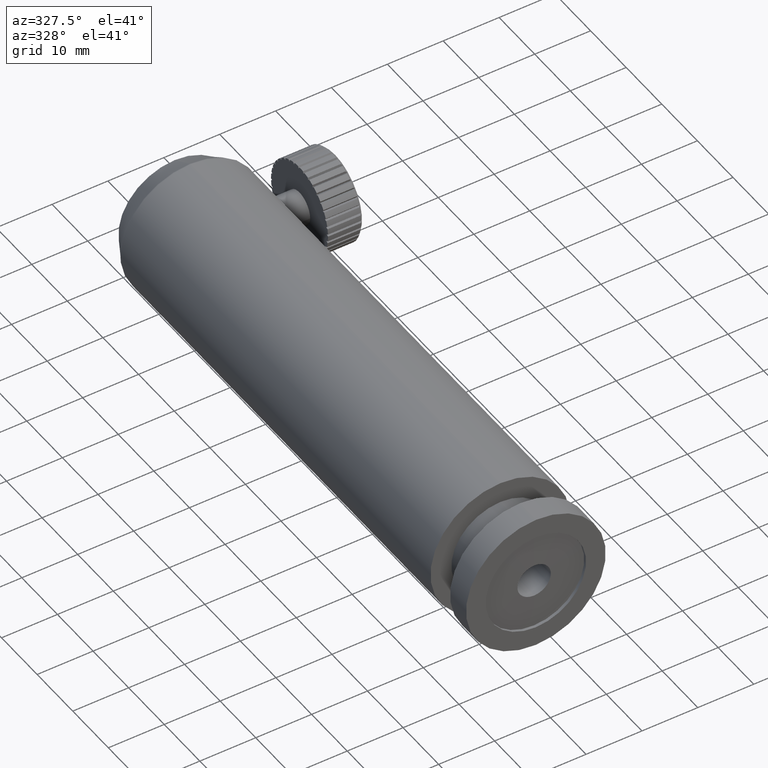
[diagram: clean part render]
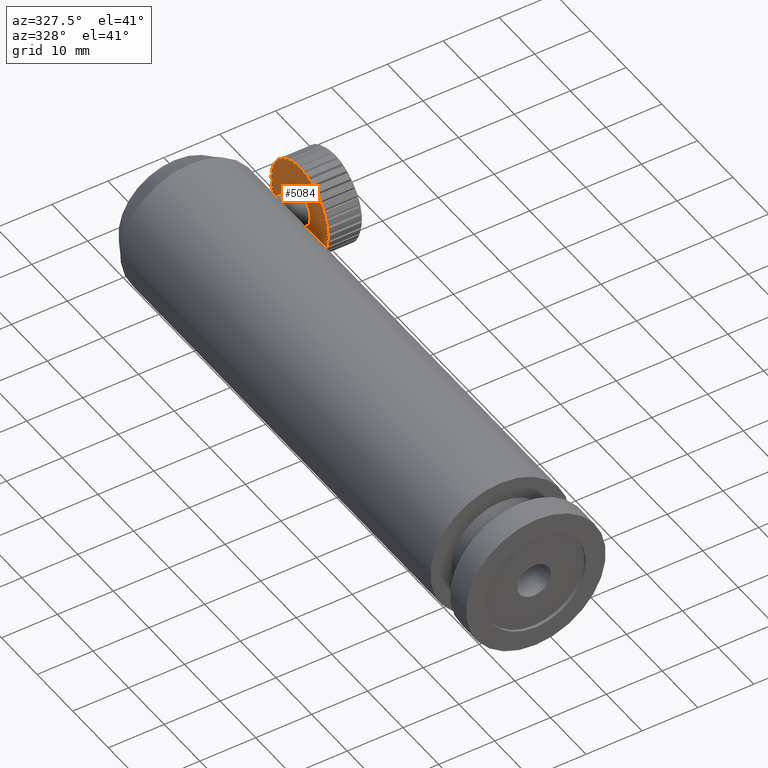
[diagram: same view with one face highlighted and labeled with its STEP entity id]
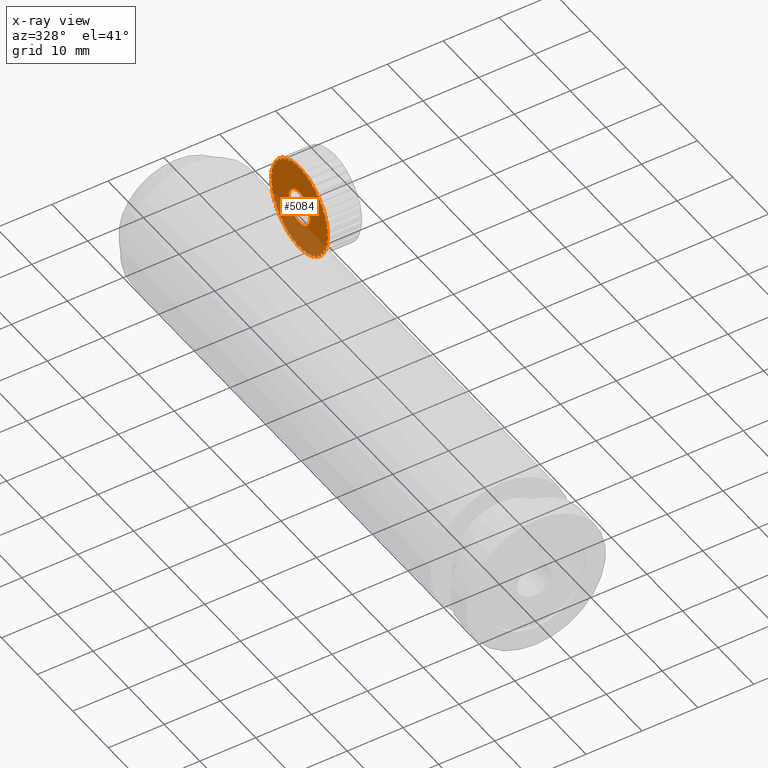
[diagram: x-ray of the same camera — body ghosted, the highlighted face saturated]
A machine part, auxiliary view. The second image highlights one B-rep face of the part: STEP entity #5084.
The next image is the same camera in x-ray: the body ghosted, the highlighted face saturated — about 34% of this face is hidden behind the body in this view.
In plain terms, the highlighted planar face has unit normal (1, -0, 0).
Its self-contained STEP definition (entity closure, byte-faithful):
#5 = ORIENTED_EDGE ( 'NONE', *, *, #3698, .F. ) ;
#6 = DIRECTION ( 'NONE',  ( -0.0000000000000000000, 0.9301839689710697000, -0.3670936990323153100 ) ) ;
#10 = CARTESIAN_POINT ( 'NONE',  ( 12.48421014442428300, 68.21969799457836800, -2.321843782192323700 ) ) ;
#14 = AXIS2_PLACEMENT_3D ( 'NONE', #1538, #2363, #3179 ) ;
#18 = CARTESIAN_POINT ( 'NONE',  ( 12.48421014442428300, 78.12890306093747500, -8.845274899523376500 ) ) ;
#21 = VECTOR ( 'NONE', #2490, 1000.000000000000100 ) ;
#26 = LINE ( 'NONE', #597, #3717 ) ;
#32 = VECTOR ( 'NONE', #1642, 1000.000000000000100 ) ;
#33 = VERTEX_POINT ( 'NONE', #3732 ) ;
#35 = VECTOR ( 'NONE', #4145, 1000.000000000000100 ) ;
#46 = ORIENTED_EDGE ( 'NONE', *, *, #4648, .T. ) ;
#66 = VERTEX_POINT ( 'NONE', #2930 ) ;
#71 = EDGE_CURVE ( 'NONE', #4280, #1171, #5062, .T. ) ;
#77 = EDGE_CURVE ( 'NONE', #4323, #784, #1349, .T. ) ;
#82 = AXIS2_PLACEMENT_3D ( 'NONE', #91, #4534, #4561 ) ;
#83 = LINE ( 'NONE', #3988, #268 ) ;
#84 = DIRECTION ( 'NONE',  ( 0.0000000000000000000, 1.000000000000000000, 0.0000000000000000000 ) ) ;
#91 = CARTESIAN_POINT ( 'NONE',  ( 12.48421014442428300, 75.78638794039017100, -1.195920488201649000 ) ) ;
#95 = AXIS2_PLACEMENT_3D ( 'NONE', #545, #4589, #1738 ) ;
#112 = VECTOR ( 'NONE', #638, 1000.000000000000100 ) ;
#125 = CARTESIAN_POINT ( 'NONE',  ( 12.48421014442428300, 82.70763405751586100, -5.207946433553005700 ) ) ;
#130 = VERTEX_POINT ( 'NONE', #3054 ) ;
#162 = VECTOR ( 'NONE', #4888, 1000.000000000000100 ) ;
#171 = CIRCLE ( 'NONE', #4205, 8.000000000000007100 ) ;
#173 = VECTOR ( 'NONE', #2562, 1000.000000000000200 ) ;
#178 = LINE ( 'NONE', #4708, #305 ) ;
#187 = CARTESIAN_POINT ( 'NONE',  ( 12.48421014442428300, 82.91275798835765400, 2.439303017916212700 ) ) ;
#188 = CARTESIAN_POINT ( 'NONE',  ( 12.48421014442428300, 75.78638794039017100, -1.195920488201649000 ) ) ;
#190 = CARTESIAN_POINT ( 'NONE',  ( 12.48421014442428300, 70.96891047542338500, 5.190934048621410400 ) ) ;
#234 = VECTOR ( 'NONE', #3608, 1000.000000000000000 ) ;
#236 = DIRECTION ( 'NONE',  ( 1.000000000000000000, -1.155557966632341200E-032, 0.0000000000000000000 ) ) ;
#237 = CIRCLE ( 'NONE', #1286, 8.000000000000007100 ) ;
#245 = CARTESIAN_POINT ( 'NONE',  ( 12.48421014442428300, 68.13703352906843200, -3.538435608748936400 ) ) ;
#256 = VERTEX_POINT ( 'NONE', #760 ) ;
#261 = CARTESIAN_POINT ( 'NONE',  ( 12.48421014442428300, 74.38352235411341000, -9.071958079963158300 ) ) ;
#264 = CARTESIAN_POINT ( 'NONE',  ( 12.48421014442428300, 78.53560042123520200, 6.316857342612055800 ) ) ;
#268 = VECTOR ( 'NONE', #4250, 1000.000000000000000 ) ;
#277 = VERTEX_POINT ( 'NONE', #828 ) ;
#280 = LINE ( 'NONE', #4871, #462 ) ;
#284 = VERTEX_POINT ( 'NONE', #4083 ) ;
#294 = DIRECTION ( 'NONE',  ( -0.0000000000000000000, -0.9301839689710635900, 0.3670936990323308600 ) ) ;
#298 = CARTESIAN_POINT ( 'NONE',  ( 12.48421014442428300, 69.26623761176215100, 2.805346772566119600 ) ) ;
#300 = LINE ( 'NONE', #1800, #1062 ) ;
#305 = VECTOR ( 'NONE', #1009, 1000.000000000000000 ) ;
#306 = CARTESIAN_POINT ( 'NONE',  ( 12.48421014442428100, 75.80028127114394500, 6.804067447749289100 ) ) ;
#308 = DIRECTION ( 'NONE',  ( -0.0000000000000000000, -0.6630968945043963500, -0.7485335720584784800 ) ) ;
#332 = AXIS2_PLACEMENT_3D ( 'NONE', #4365, #2741, #2728 ) ;
#345 = EDGE_CURVE ( 'NONE', #3663, #2193, #3031, .T. ) ;
#349 = ORIENTED_EDGE ( 'NONE', *, *, #3178, .F. ) ;
#355 = VERTEX_POINT ( 'NONE', #5286 ) ;
#356 = DIRECTION ( 'NONE',  ( 1.000000000000000000, -1.155557966632341200E-032, 0.0000000000000000000 ) ) ;
#366 = EDGE_CURVE ( 'NONE', #967, #256, #4109, .T. ) ;
#394 = CARTESIAN_POINT ( 'NONE',  ( 12.48421014442428300, 83.30866936915521100, 1.527181071868525000 ) ) ;
#409 = DIRECTION ( 'NONE',  ( 0.0000000000000000000, 1.000000000000000000, 0.0000000000000000000 ) ) ;
#412 = EDGE_CURVE ( 'NONE', #780, #4587, #1122, .T. ) ;
#418 = CARTESIAN_POINT ( 'NONE',  ( 12.48421014442428300, 83.28183909262882900, -2.725859057035052500 ) ) ;
#419 = DIRECTION ( 'NONE',  ( 1.000000000000000000, -1.155557966632341200E-032, 0.0000000000000000000 ) ) ;
#420 = DIRECTION ( 'NONE',  ( -0.0000000000000000000, 0.3670936990323480100, 0.9301839689710567100 ) ) ;
#442 = EDGE_CURVE ( 'NONE', #1023, #4883, #5092, .T. ) ;
#445 = CARTESIAN_POINT ( 'NONE',  ( 12.48421014442428300, 74.41088687379634300, 6.684942206694086200 ) ) ;
#448 = CARTESIAN_POINT ( 'NONE',  ( 12.48421014442428300, 82.49776886910629500, -5.549926233451109200 ) ) ;
#450 = VERTEX_POINT ( 'NONE', #2088 ) ;
#454 = ORIENTED_EDGE ( 'NONE', *, *, #5057, .F. ) ;
#456 = AXIS2_PLACEMENT_3D ( 'NONE', #1082, #5223, #1552 ) ;
#462 = VECTOR ( 'NONE', #3958, 1000.000000000000200 ) ;
#465 = VECTOR ( 'NONE', #1604, 1000.000000000000000 ) ;
#466 = ORIENTED_EDGE ( 'NONE', *, *, #3148, .T. ) ;
#484 = ORIENTED_EDGE ( 'NONE', *, *, #345, .T. ) ;
#486 = CARTESIAN_POINT ( 'NONE',  ( 12.48421014442428300, 78.20914784967014600, -8.452140883282387700 ) ) ;
#487 = EDGE_CURVE ( 'NONE', #3309, #1844, #4694, .T. ) ;
#489 = LINE ( 'NONE', #3753, #1201 ) ;
#493 = VECTOR ( 'NONE', #2920, 1000.000000000000000 ) ;
#499 = CARTESIAN_POINT ( 'NONE',  ( 12.48421014442428300, 80.14039368563960900, 5.515460440514504900 ) ) ;
#501 = ORIENTED_EDGE ( 'NONE', *, *, #4383, .T. ) ;
#503 = DIRECTION ( 'NONE',  ( -0.0000000000000000000, -0.7485335720584577200, 0.6630968945044200000 ) ) ;
#506 = CARTESIAN_POINT ( 'NONE',  ( 12.48421014442428300, 71.43238219514070400, -7.907301416917771800 ) ) ;
#508 = EDGE_CURVE ( 'NONE', #4812, #4609, #3105, .T. ) ;
#511 = VERTEX_POINT ( 'NONE', #4162 ) ;
#522 = DIRECTION ( 'NONE',  ( 0.0000000000000000000, 1.000000000000000000, 0.0000000000000000000 ) ) ;
#527 = ORIENTED_EDGE ( 'NONE', *, *, #4373, .T. ) ;
#535 = VERTEX_POINT ( 'NONE', #125 ) ;
#538 = LINE ( 'NONE', #5176, #5156 ) ;
#545 = CARTESIAN_POINT ( 'NONE',  ( 12.48421014442428300, 75.78638794039017100, -1.195920488201649000 ) ) ;
#556 = CARTESIAN_POINT ( 'NONE',  ( 12.48421014442428300, 83.72630495203822000, -0.2172898897928158800 ) ) ;
#565 = VERTEX_POINT ( 'NONE', #849 ) ;
#572 = CARTESIAN_POINT ( 'NONE',  ( 12.48421014442428300, 68.85124849251074900, -5.183882478801194800 ) ) ;
#575 = EDGE_CURVE ( 'NONE', #2933, #3915, #3157, .T. ) ;
#576 = ORIENTED_EDGE ( 'NONE', *, *, #4796, .F. ) ;
#597 = CARTESIAN_POINT ( 'NONE',  ( 12.48421014442428300, 82.90229530301881800, -4.004187285798924000 ) ) ;
#600 = ORIENTED_EDGE ( 'NONE', *, *, #1553, .T. ) ;
#613 = LINE ( 'NONE', #418, #3409 ) ;
#616 = CARTESIAN_POINT ( 'NONE',  ( 12.48421014442428300, 83.35307788620194500, -0.06999719421092211200 ) ) ;
#620 = EDGE_CURVE ( 'NONE', #2169, #1693, #3786, .T. ) ;
#621 = VECTOR ( 'NONE', #4920, 999.9999999999998900 ) ;
#624 = DIRECTION ( 'NONE',  ( -0.0000000000000000000, -0.8791208182313531300, -0.4765989791766617700 ) ) ;
#626 = EDGE_CURVE ( 'NONE', #1633, #1802, #5219, .T. ) ;
#632 = DIRECTION ( 'NONE',  ( -0.0000000000000000000, 0.6630968945044158900, 0.7485335720584612700 ) ) ;
#637 = EDGE_CURVE ( 'NONE', #4120, #3923, #1185, .T. ) ;
#638 = DIRECTION ( 'NONE',  ( -0.0000000000000000000, 0.9891097968381404900, 0.1471795155543475000 ) ) ;
#662 = DIRECTION ( 'NONE',  ( -0.0000000000000000000, 0.8791208182313480200, 0.4765989791766712700 ) ) ;
#665 = ORIENTED_EDGE ( 'NONE', *, *, #3366, .T. ) ;
#667 = VERTEX_POINT ( 'NONE', #1729 ) ;
#669 = EDGE_CURVE ( 'NONE', #825, #998, #1055, .T. ) ;
#692 = EDGE_CURVE ( 'NONE', #1550, #825, #4620, .T. ) ;
#700 = CARTESIAN_POINT ( 'NONE',  ( 12.48421014442428300, 72.97812114279281600, -8.311827850830278300 ) ) ;
#701 = CARTESIAN_POINT ( 'NONE',  ( 12.48421014442428300, 68.53016754530942500, -3.618680397481611100 ) ) ;
#703 = CARTESIAN_POINT ( 'NONE',  ( 12.48421014442428300, 72.78638794039015600, -1.195920488201648800 ) ) ;
#711 = EDGE_CURVE ( 'NONE', #5139, #3663, #1506, .T. ) ;
#720 = CARTESIAN_POINT ( 'NONE',  ( 12.48421014442428300, 68.42090280515834900, 1.926519058479618600 ) ) ;
#727 = LINE ( 'NONE', #2723, #3722 ) ;
#733 = CARTESIAN_POINT ( 'NONE',  ( 12.48421014442428300, 81.23966562287165500, 4.657434320602377800 ) ) ;
#739 = ORIENTED_EDGE ( 'NONE', *, *, #1238, .T. ) ;
#740 = CARTESIAN_POINT ( 'NONE',  ( 12.48421014442428300, 73.99038833787243200, -8.991713291230482200 ) ) ;
#748 = LINE ( 'NONE', #700, #3867 ) ;
#750 = CARTESIAN_POINT ( 'NONE',  ( 12.48421014442428300, 71.78512067962242300, -7.716070816829677000 ) ) ;
#760 = CARTESIAN_POINT ( 'NONE',  ( 12.48421014442428300, 78.78638794039017100, -1.195920488201649000 ) ) ;
#763 = EDGE_CURVE ( 'NONE', #3953, #3445, #1645, .T. ) ;
#778 = ORIENTED_EDGE ( 'NONE', *, *, #3766, .T. ) ;
#780 = VERTEX_POINT ( 'NONE', #4163 ) ;
#784 = VERTEX_POINT ( 'NONE', #5113 ) ;
#798 = DIRECTION ( 'NONE',  ( 1.000000000000000000, -1.155557966632341200E-032, 0.0000000000000000000 ) ) ;
#806 = AXIS2_PLACEMENT_3D ( 'NONE', #1438, #1901, #2285 ) ;
#825 = VERTEX_POINT ( 'NONE', #3061 ) ;
#827 = AXIS2_PLACEMENT_3D ( 'NONE', #5047, #2137, #5029 ) ;
#828 = CARTESIAN_POINT ( 'NONE',  ( 12.48421014442428300, 76.91231123438088000, -8.762610434013431900 ) ) ;
#831 = AXIS2_PLACEMENT_3D ( 'NONE', #1778, #2155, #1369 ) ;
#833 = ORIENTED_EDGE ( 'NONE', *, *, #5193, .F. ) ;
#841 = CARTESIAN_POINT ( 'NONE',  ( 12.48421014442428300, 69.07500701167406000, 3.158085257047858400 ) ) ;
#849 = CARTESIAN_POINT ( 'NONE',  ( 12.48421014442428300, 81.77637200902809400, 3.562502660012873500 ) ) ;
#862 = CARTESIAN_POINT ( 'NONE',  ( 12.48421014442428300, 69.79640387175220400, -5.954343636416131100 ) ) ;
#869 = DIRECTION ( 'NONE',  ( -0.0000000000000000000, 0.9485255418406158800, 0.3167006417359551900 ) ) ;
#871 = LINE ( 'NONE', #3526, #621 ) ;
#878 = CARTESIAN_POINT ( 'NONE',  ( 12.48421014442428300, 77.58238754290795200, 6.599872314827171000 ) ) ;
#884 = CARTESIAN_POINT ( 'NONE',  ( 12.48421014442428300, 68.13913848892096300, -0.9907965573598036500 ) ) ;
#886 = ORIENTED_EDGE ( 'NONE', *, *, #3789, .F. ) ;
#890 = DIRECTION ( 'NONE',  ( 1.000000000000000000, -1.155557966632341200E-032, 1.368455531567204200E-048 ) ) ;
#897 = ORIENTED_EDGE ( 'NONE', *, *, #4171, .T. ) ;
#902 = CARTESIAN_POINT ( 'NONE',  ( 12.48421014442428300, 72.14040574968875300, 5.529353771268226600 ) ) ;
#904 = EDGE_CURVE ( 'NONE', #3707, #4032, #2574, .T. ) ;
#919 = ORIENTED_EDGE ( 'NONE', *, *, #366, .F. ) ;
#925 = DIRECTION ( 'NONE',  ( -0.0000000000000000000, -0.9891097968381429300, -0.1471795155543308700 ) ) ;
#937 = CIRCLE ( 'NONE', #806, 8.000000000000007100 ) ;
#938 = ORIENTED_EDGE ( 'NONE', *, *, #4510, .T. ) ;
#952 = CARTESIAN_POINT ( 'NONE',  ( 12.48421014442428300, 82.51166219985999800, 2.450061702499845700 ) ) ;
#958 = ORIENTED_EDGE ( 'NONE', *, *, #4516, .T. ) ;
#967 = VERTEX_POINT ( 'NONE', #703 ) ;
#968 = DIRECTION ( 'NONE',  ( 0.0000000000000000000, 1.000000000000000000, 0.0000000000000000000 ) ) ;
#974 = CARTESIAN_POINT ( 'NONE',  ( 12.48421014442428300, 74.66046464639951800, 6.370769457610142800 ) ) ;
#981 = DIRECTION ( 'NONE',  ( -0.0000000000000000000, -0.9797975362403484900, 0.1999919697821470100 ) ) ;
#984 = VERTEX_POINT ( 'NONE', #3941 ) ;
#985 = DIRECTION ( 'NONE',  ( -0.0000000000000000000, -0.1999919697821329100, -0.9797975362403511500 ) ) ;
#998 = VERTEX_POINT ( 'NONE', #2660 ) ;
#999 = EDGE_CURVE ( 'NONE', #4884, #5074, #4423, .T. ) ;
#1006 = CIRCLE ( 'NONE', #3056, 8.000000000000007100 ) ;
#1007 = DIRECTION ( 'NONE',  ( 0.0000000000000000000, 1.000000000000000000, 0.0000000000000000000 ) ) ;
#1009 = DIRECTION ( 'NONE',  ( -0.0000000000000000000, -0.9996404511724446000, 0.02681358573095796900 ) ) ;
#1013 = VERTEX_POINT ( 'NONE', #5184 ) ;
#1017 = CARTESIAN_POINT ( 'NONE',  ( 12.48421014442428300, 75.78638794039017100, -1.195920488201649000 ) ) ;
#1022 = EDGE_CURVE ( 'NONE', #3436, #3721, #727, .T. ) ;
#1023 = VERTEX_POINT ( 'NONE', #2307 ) ;
#1024 = VERTEX_POINT ( 'NONE', #3528 ) ;
#1026 = DIRECTION ( 'NONE',  ( 1.000000000000000000, -1.155557966632341200E-032, 0.0000000000000000000 ) ) ;
#1027 = EDGE_CURVE ( 'NONE', #4185, #1228, #1177, .T. ) ;
#1036 = DIRECTION ( 'NONE',  ( 1.000000000000000000, -1.155557966632341200E-032, 0.0000000000000000000 ) ) ;
#1051 = CARTESIAN_POINT ( 'NONE',  ( 12.48421014442428300, 75.58126400954834900, -8.843169939670852700 ) ) ;
#1054 = ORIENTED_EDGE ( 'NONE', *, *, #4136, .F. ) ;
#1055 = LINE ( 'NONE', #1329, #1371 ) ;
#1062 = VECTOR ( 'NONE', #2210, 1000.000000000000100 ) ;
#1064 = VECTOR ( 'NONE', #1587, 1000.000000000000100 ) ;
#1082 = CARTESIAN_POINT ( 'NONE',  ( 12.48421014442428300, 75.78638794039017100, -1.195920488201649000 ) ) ;
#1118 = DIRECTION ( 'NONE',  ( 1.000000000000000000, -1.155557966632341200E-032, 0.0000000000000000000 ) ) ;
#1122 = LINE ( 'NONE', #1756, #35 ) ;
#1129 = LINE ( 'NONE', #4526, #4977 ) ;
#1130 = ORIENTED_EDGE ( 'NONE', *, *, #4095, .T. ) ;
#1134 = DIRECTION ( 'NONE',  ( -0.0000000000000000000, 0.1999919697821337400, 0.9797975362403510400 ) ) ;
#1147 = AXIS2_PLACEMENT_3D ( 'NONE', #4387, #356, #4841 ) ;
#1163 = CARTESIAN_POINT ( 'NONE',  ( 12.48421014442428300, 69.93303313158618600, 4.257357194279905800 ) ) ;
#1164 = VECTOR ( 'NONE', #5100, 1000.000000000000000 ) ;
#1165 = DIRECTION ( 'NONE',  ( -0.0000000000000000000, -0.7830044534167229800, -0.6220160978058195700 ) ) ;
#1171 = VERTEX_POINT ( 'NONE', #448 ) ;
#1173 = DIRECTION ( 'NONE',  ( 0.0000000000000000000, 1.000000000000000000, 0.0000000000000000000 ) ) ;
#1177 = LINE ( 'NONE', #3507, #4553 ) ;
#1183 = DIRECTION ( 'NONE',  ( -0.0000000000000000000, 0.9301839689710635900, -0.3670936990323308600 ) ) ;
#1185 = LINE ( 'NONE', #4935, #2444 ) ;
#1186 = CARTESIAN_POINT ( 'NONE',  ( 12.48421014442428300, 80.60386540535698400, -7.582775025024672800 ) ) ;
#1187 = LINE ( 'NONE', #3495, #2908 ) ;
#1196 = VECTOR ( 'NONE', #1607, 1000.000000000000100 ) ;
#1197 = CARTESIAN_POINT ( 'NONE',  ( 12.48421014442428300, 83.43574235171190900, 1.146594632345687000 ) ) ;
#1199 = ORIENTED_EDGE ( 'NONE', *, *, #442, .F. ) ;
#1200 = VERTEX_POINT ( 'NONE', #841 ) ;
#1202 = CARTESIAN_POINT ( 'NONE',  ( 12.48421014442428300, 69.07500701167406000, 3.158085257047856600 ) ) ;
#1201 = VECTOR ( 'NONE', #3316, 1000.000000000000100 ) ;
#1206 = ORIENTED_EDGE ( 'NONE', *, *, #620, .T. ) ;
#1216 = EDGE_CURVE ( 'NONE', #5142, #2877, #5025, .T. ) ;
#1217 = VERTEX_POINT ( 'NONE', #1705 ) ;
#1218 = ORIENTED_EDGE ( 'NONE', *, *, #1793, .T. ) ;
#1224 = ORIENTED_EDGE ( 'NONE', *, *, #1022, .T. ) ;
#1228 = VERTEX_POINT ( 'NONE', #2443 ) ;
#1238 = EDGE_CURVE ( 'NONE', #2302, #4812, #3780, .T. ) ;
#1251 = CARTESIAN_POINT ( 'NONE',  ( 12.48421014442428300, 72.97812114279281600, -8.311827850830278300 ) ) ;
#1261 = CIRCLE ( 'NONE', #1147, 8.000000000000007100 ) ;
#1270 = EDGE_CURVE ( 'NONE', #4412, #4940, #1636, .T. ) ;
#1276 = ORIENTED_EDGE ( 'NONE', *, *, #4440, .T. ) ;
#1279 = ORIENTED_EDGE ( 'NONE', *, *, #1709, .F. ) ;
#1286 = AXIS2_PLACEMENT_3D ( 'NONE', #1863, #2999, #968 ) ;
#1293 = CARTESIAN_POINT ( 'NONE',  ( 12.48421014442428300, 67.99059513736133900, 0.6000791143161129400 ) ) ;
#1314 = CARTESIAN_POINT ( 'NONE',  ( 12.48421014442428300, 75.78638794039017100, -1.195920488201649000 ) ) ;
#1315 = DIRECTION ( 'NONE',  ( 1.000000000000000000, -1.155557966632341200E-032, 0.0000000000000000000 ) ) ;
#1321 = VERTEX_POINT ( 'NONE', #3400 ) ;
#1329 = CARTESIAN_POINT ( 'NONE',  ( 12.48421014442428300, 72.15116443427237400, 5.930449559765878400 ) ) ;
#1331 = CIRCLE ( 'NONE', #95, 8.000000000000007100 ) ;
#1336 = CARTESIAN_POINT ( 'NONE',  ( 12.48421014442428300, 71.43238219514070400, -7.907301416917778000 ) ) ;
#1349 = CIRCLE ( 'NONE', #2400, 8.000000000000007100 ) ;
#1355 = AXIS2_PLACEMENT_3D ( 'NONE', #2715, #5234, #3987 ) ;
#1359 = DIRECTION ( 'NONE',  ( -0.0000000000000000000, 0.5230414719957520200, 0.8523072325004152900 ) ) ;
#1366 = VECTOR ( 'NONE', #1183, 1000.000000000000100 ) ;
#1367 = CARTESIAN_POINT ( 'NONE',  ( 12.48421014442428300, 83.77561719175746200, -1.610909607453000700 ) ) ;
#1369 = DIRECTION ( 'NONE',  ( 0.0000000000000000000, 1.000000000000000000, 0.0000000000000000000 ) ) ;
#1371 = VECTOR ( 'NONE', #4130, 1000.000000000000100 ) ;
#1373 = DIRECTION ( 'NONE',  ( 1.000000000000000000, -1.155557966632341200E-032, 0.0000000000000000000 ) ) ;
#1375 = EDGE_CURVE ( 'NONE', #1744, #4216, #3326, .T. ) ;
#1388 = CARTESIAN_POINT ( 'NONE',  ( 12.48421014442428300, 75.78638794039017100, -1.195920488201649000 ) ) ;
#1391 = EDGE_CURVE ( 'NONE', #535, #4940, #2380, .T. ) ;
#1402 = CARTESIAN_POINT ( 'NONE',  ( 12.48421014442428300, 80.60386540535699900, -7.582775025024673700 ) ) ;
#1407 = EDGE_CURVE ( 'NONE', #3790, #2121, #1563, .T. ) ;
#1414 = CARTESIAN_POINT ( 'NONE',  ( 12.48421014442428300, 68.21969799457836800, -2.321843782192323200 ) ) ;
#1418 = ORIENTED_EDGE ( 'NONE', *, *, #1391, .F. ) ;
#1431 = VECTOR ( 'NONE', #2912, 1000.000000000000100 ) ;
#1432 = ORIENTED_EDGE ( 'NONE', *, *, #1627, .T. ) ;
#1438 = CARTESIAN_POINT ( 'NONE',  ( 12.48421014442428300, 75.78638794039017100, -1.195920488201649000 ) ) ;
#1445 = EDGE_CURVE ( 'NONE', #4730, #2091, #4416, .T. ) ;
#1454 = DIRECTION ( 'NONE',  ( 0.0000000000000000000, 1.000000000000000000, 0.0000000000000000000 ) ) ;
#1457 = CARTESIAN_POINT ( 'NONE',  ( 12.48421014442428300, 75.58126400954834900, -8.843169939670851000 ) ) ;
#1458 = VECTOR ( 'NONE', #503, 999.9999999999998900 ) ;
#1466 = CARTESIAN_POINT ( 'NONE',  ( 12.48421014442428300, 82.51166219985999800, 2.450061702499844300 ) ) ;
#1468 = DIRECTION ( 'NONE',  ( 1.000000000000000000, -1.155557966632341200E-032, 0.0000000000000000000 ) ) ;
#1469 = CARTESIAN_POINT ( 'NONE',  ( 12.48421014442428300, 75.78638794039017100, -1.195920488201649000 ) ) ;
#1479 = DIRECTION ( 'NONE',  ( -0.0000000000000000000, 0.1999919697821665500, 0.9797975362403443800 ) ) ;
#1483 = ORIENTED_EDGE ( 'NONE', *, *, #3408, .F. ) ;
#1487 = DIRECTION ( 'NONE',  ( 0.0000000000000000000, 1.000000000000000000, 0.0000000000000000000 ) ) ;
#1488 = LINE ( 'NONE', #2024, #1164 ) ;
#1496 = CIRCLE ( 'NONE', #1773, 8.000000000000007100 ) ;
#1500 = EDGE_LOOP ( 'NONE', ( #3734, #3208, #4626, #665, #2664, #1199, #4146, #5137, #4228, #4281, #4542, #5017, #2993, #2946, #5096, #3714, #1276, #1483, #2973, #1130, #1432, #4317, #938, #3080, #454, #4222, #2635, #1418, #958, #2447, #4870, #5207, #3588, #1279, #3631, #3504, #833, #3401, #46, #349, #778, #3744, #4475, #2550, #3458, #2795, #4272, #2309, #4656, #1206, #3427, #4557, #5208, #1755, #4866, #739, #2269, #5, #2862, #2127, #2185, #4598, #466, #2073, #2129, #4601, #1674, #1683, #897, #3024, #1512, #4703, #2722, #3134, #2381, #3913, #4368, #2183, #4767, #3037, #600, #3250, #5211, #3955, #576, #501, #3338, #4239, #3704, #2745, #886, #4967, #5026, #2488, #3702, #2720, #4530, #2266, #3107, #4214, #4810, #1218, #2256, #527, #1224, #1054, #5013, #484, #3010 ) ) ;
#1506 = LINE ( 'NONE', #4535, #2707 ) ;
#1512 = ORIENTED_EDGE ( 'NONE', *, *, #3055, .T. ) ;
#1516 = CARTESIAN_POINT ( 'NONE',  ( 12.48421014442428300, 77.16188900698405500, -9.076783183097372600 ) ) ;
#1525 = LINE ( 'NONE', #1197, #4441 ) ;
#1530 = CARTESIAN_POINT ( 'NONE',  ( 12.48421014442428300, 74.25644937155672700, -8.691371640440316100 ) ) ;
#1538 = CARTESIAN_POINT ( 'NONE',  ( 12.48421014442428300, 75.78638794039017100, -1.195920488201649000 ) ) ;
#1543 = CARTESIAN_POINT ( 'NONE',  ( 12.48421014442428300, 69.66697209790187600, 3.957015543489744000 ) ) ;
#1550 = VERTEX_POINT ( 'NONE', #4004 ) ;
#1552 = DIRECTION ( 'NONE',  ( 0.0000000000000000000, 1.000000000000000000, 0.0000000000000000000 ) ) ;
#1553 = EDGE_CURVE ( 'NONE', #2190, #4188, #2950, .T. ) ;
#1557 = DIRECTION ( 'NONE',  ( -0.0000000000000000000, -0.4765989791766543900, 0.8791208182313572400 ) ) ;
#1559 = LINE ( 'NONE', #2961, #21 ) ;
#1563 = LINE ( 'NONE', #3843, #3832 ) ;
#1565 = LINE ( 'NONE', #3131, #1366 ) ;
#1571 = AXIS2_PLACEMENT_3D ( 'NONE', #4490, #5198, #2370 ) ;
#1582 = VECTOR ( 'NONE', #2217, 1000.000000000000000 ) ;
#1585 = CARTESIAN_POINT ( 'NONE',  ( 12.48421014442428300, 78.20914784967014600, -8.452140883282387700 ) ) ;
#1586 = CARTESIAN_POINT ( 'NONE',  ( 12.48421014442428300, 80.14039368563960900, 5.515460440514504900 ) ) ;
#1587 = DIRECTION ( 'NONE',  ( -0.0000000000000000000, -0.7830044534167229800, -0.6220160978058195700 ) ) ;
#1588 = VECTOR ( 'NONE', #624, 1000.000000000000200 ) ;
#1595 = LINE ( 'NONE', #1293, #1458 ) ;
#1604 = DIRECTION ( 'NONE',  ( -0.0000000000000000000, 0.9485255418406175500, 0.3167006417359506900 ) ) ;
#1607 = DIRECTION ( 'NONE',  ( -0.0000000000000000000, 0.1471795155543073300, -0.9891097968381463700 ) ) ;
#1612 = AXIS2_PLACEMENT_3D ( 'NONE', #1469, #1026, #3875 ) ;
#1621 = VERTEX_POINT ( 'NONE', #3626 ) ;
#1624 = VERTEX_POINT ( 'NONE', #1163 ) ;
#1627 = EDGE_CURVE ( 'NONE', #1621, #2610, #280, .T. ) ;
#1633 = VERTEX_POINT ( 'NONE', #306 ) ;
#1636 = LINE ( 'NONE', #4125, #2634 ) ;
#1641 = DIRECTION ( 'NONE',  ( 0.0000000000000000000, 1.000000000000000000, 0.0000000000000000000 ) ) ;
#1642 = DIRECTION ( 'NONE',  ( -0.0000000000000000000, -0.3167006417359694600, 0.9485255418406112200 ) ) ;
#1645 = LINE ( 'NONE', #3406, #5031 ) ;
#1646 = DIRECTION ( 'NONE',  ( 1.000000000000000000, -1.155557966632341200E-032, 0.0000000000000000000 ) ) ;
#1647 = CIRCLE ( 'NONE', #2148, 8.000000000000007100 ) ;
#1654 = CIRCLE ( 'NONE', #1355, 8.000000000000007100 ) ;
#1660 = DIRECTION ( 'NONE',  ( 0.0000000000000000000, 1.000000000000000000, 0.0000000000000000000 ) ) ;
#1659 = VECTOR ( 'NONE', #2879, 1000.000000000000100 ) ;
#1661 = EDGE_LOOP ( 'NONE', ( #5146, #919 ) ) ;
#1666 = CARTESIAN_POINT ( 'NONE',  ( 12.48421014442428300, 82.72152738826957800, 2.792041502397938100 ) ) ;
#1674 = ORIENTED_EDGE ( 'NONE', *, *, #3881, .F. ) ;
#1675 = CARTESIAN_POINT ( 'NONE',  ( 12.48421014442428300, 83.58218074341900200, -2.991920090719359500 ) ) ;
#1676 = AXIS2_PLACEMENT_3D ( 'NONE', #3748, #1315, #1733 ) ;
#1681 = DIRECTION ( 'NONE',  ( 0.0000000000000000000, 1.000000000000000000, 0.0000000000000000000 ) ) ;
#1683 = ORIENTED_EDGE ( 'NONE', *, *, #1375, .T. ) ;
#1686 = DIRECTION ( 'NONE',  ( -0.0000000000000000000, 0.6220160978058312300, -0.7830044534167136500 ) ) ;
#1693 = VERTEX_POINT ( 'NONE', #1530 ) ;
#1696 = VERTEX_POINT ( 'NONE', #2726 ) ;
#1705 = CARTESIAN_POINT ( 'NONE',  ( 12.48421014442428300, 68.86514182326450900, 2.816105457149756100 ) ) ;
#1709 = EDGE_CURVE ( 'NONE', #4185, #4354, #1752, .T. ) ;
#1713 = CIRCLE ( 'NONE', #1612, 8.000000000000007100 ) ;
#1718 = VECTOR ( 'NONE', #925, 1000.000000000000000 ) ;
#1719 = LINE ( 'NONE', #4597, #173 ) ;
#1721 = AXIS2_PLACEMENT_3D ( 'NONE', #5080, #890, #3300 ) ;
#1725 = CIRCLE ( 'NONE', #2792, 8.000000000000007100 ) ;
#1727 = DIRECTION ( 'NONE',  ( 0.0000000000000000000, 1.000000000000000000, 0.0000000000000000000 ) ) ;
#1729 = CARTESIAN_POINT ( 'NONE',  ( 12.48421014442428300, 79.42161144650799500, -8.322290536169152400 ) ) ;
#1733 = DIRECTION ( 'NONE',  ( 0.0000000000000000000, 1.000000000000000000, 0.0000000000000000000 ) ) ;
#1738 = DIRECTION ( 'NONE',  ( 0.0000000000000000000, 1.000000000000000000, 0.0000000000000000000 ) ) ;
#1744 = VERTEX_POINT ( 'NONE', #4390 ) ;
#1752 = CIRCLE ( 'NONE', #2064, 8.000000000000007100 ) ;
#1755 = ORIENTED_EDGE ( 'NONE', *, *, #4802, .T. ) ;
#1756 = CARTESIAN_POINT ( 'NONE',  ( 12.48421014442428300, 74.80775734198141400, 6.743996523446404500 ) ) ;
#1770 = VERTEX_POINT ( 'NONE', #2596 ) ;
#1773 = AXIS2_PLACEMENT_3D ( 'NONE', #4138, #2087, #1660 ) ;
#1778 = CARTESIAN_POINT ( 'NONE',  ( 12.48421014442428300, 75.78638794039017100, -1.195920488201649000 ) ) ;
#1785 = DIRECTION ( 'NONE',  ( -0.0000000000000000000, 0.4765989791766552200, -0.8791208182313566800 ) ) ;
#1793 = EDGE_CURVE ( 'NONE', #1802, #1024, #4037, .T. ) ;
#1799 = CIRCLE ( 'NONE', #14, 3.000000000000002700 ) ;
#1800 = CARTESIAN_POINT ( 'NONE',  ( 12.48421014442428300, 81.63974274919417000, -6.649198170683167300 ) ) ;
#1801 = CARTESIAN_POINT ( 'NONE',  ( 12.48421014442428300, 83.35307788620194500, -0.06999719421092143200 ) ) ;
#1802 = VERTEX_POINT ( 'NONE', #4638 ) ;
#1819 = EDGE_CURVE ( 'NONE', #4292, #1624, #2691, .T. ) ;
#1840 = CARTESIAN_POINT ( 'NONE',  ( 12.48421014442428300, 75.78638794039017100, -1.195920488201649000 ) ) ;
#1844 = VERTEX_POINT ( 'NONE', #3918 ) ;
#1849 = AXIS2_PLACEMENT_3D ( 'NONE', #2551, #3297, #4959 ) ;
#1851 = EDGE_CURVE ( 'NONE', #5063, #284, #4742, .T. ) ;
#1861 = DIRECTION ( 'NONE',  ( 1.000000000000000000, -1.155557966632341200E-032, 0.0000000000000000000 ) ) ;
#1863 = CARTESIAN_POINT ( 'NONE',  ( 12.48421014442428300, 75.78638794039017100, -1.195920488201649000 ) ) ;
#1872 = CARTESIAN_POINT ( 'NONE',  ( 12.48421014442428300, 75.78638794039017100, -1.195920488201649000 ) ) ;
#1893 = EDGE_CURVE ( 'NONE', #2577, #2426, #2701, .T. ) ;
#1897 = LINE ( 'NONE', #4929, #2785 ) ;
#1901 = DIRECTION ( 'NONE',  ( 1.000000000000000000, -1.155557966632341200E-032, 0.0000000000000000000 ) ) ;
#1902 = CIRCLE ( 'NONE', #4999, 8.000000000000007100 ) ;
#1906 = CARTESIAN_POINT ( 'NONE',  ( 12.48421014442428300, 73.44387281984290900, 6.453433923120098100 ) ) ;
#1921 = EDGE_CURVE ( 'NONE', #4292, #3991, #1565, .T. ) ;
#1931 = EDGE_CURVE ( 'NONE', #5024, #4883, #2191, .T. ) ;
#1938 = VERTEX_POINT ( 'NONE', #3960 ) ;
#1948 = CARTESIAN_POINT ( 'NONE',  ( 12.48421014442428300, 75.78638794039017100, -1.195920488201649000 ) ) ;
#1949 = VERTEX_POINT ( 'NONE', #5249 ) ;
#1956 = EDGE_CURVE ( 'NONE', #4679, #5074, #3834, .T. ) ;
#1957 = VECTOR ( 'NONE', #5119, 1000.000000000000200 ) ;
#1978 = CARTESIAN_POINT ( 'NONE',  ( 12.48421014442428300, 81.23966562287165500, 4.657434320602377800 ) ) ;
#1979 = VERTEX_POINT ( 'NONE', #4391 ) ;
#1991 = DIRECTION ( 'NONE',  ( 1.000000000000000000, -1.155557966632341200E-032, 0.0000000000000000000 ) ) ;
#2016 = VECTOR ( 'NONE', #4562, 999.9999999999998900 ) ;
#2022 = CARTESIAN_POINT ( 'NONE',  ( 12.48421014442428300, 75.99151187123206300, 6.451328963267553000 ) ) ;
#2024 = CARTESIAN_POINT ( 'NONE',  ( 12.48421014442428300, 75.37139882113878300, -9.185149739568952800 ) ) ;
#2025 = LINE ( 'NONE', #2476, #4635 ) ;
#2038 = CARTESIAN_POINT ( 'NONE',  ( 12.48421014442428300, 83.15187307562200700, -4.318360034882863900 ) ) ;
#2043 = CARTESIAN_POINT ( 'NONE',  ( 12.48421014442428300, 70.71369669743147300, -6.922202314448957100 ) ) ;
#2050 = CARTESIAN_POINT ( 'NONE',  ( 12.48421014442428300, 68.27361010957643800, 1.553291992643354800 ) ) ;
#2064 = AXIS2_PLACEMENT_3D ( 'NONE', #1948, #5248, #4848 ) ;
#2073 = ORIENTED_EDGE ( 'NONE', *, *, #2398, .F. ) ;
#2081 = VECTOR ( 'NONE', #869, 1000.000000000000100 ) ;
#2087 = DIRECTION ( 'NONE',  ( 1.000000000000000000, -1.155557966632341200E-032, 0.0000000000000000000 ) ) ;
#2088 = CARTESIAN_POINT ( 'NONE',  ( 12.48421014442428300, 83.58218074341900200, -2.991920090719361300 ) ) ;
#2091 = VERTEX_POINT ( 'NONE', #3267 ) ;
#2098 = DIRECTION ( 'NONE',  ( -0.0000000000000000000, -0.9485255418406203200, -0.3167006417359422600 ) ) ;
#2106 = EDGE_CURVE ( 'NONE', #4323, #33, #3965, .T. ) ;
#2113 = CARTESIAN_POINT ( 'NONE',  ( 12.48421014442428300, 82.49776886910629500, -5.549926233451109200 ) ) ;
#2121 = VERTEX_POINT ( 'NONE', #18 ) ;
#2127 = ORIENTED_EDGE ( 'NONE', *, *, #3745, .T. ) ;
#2129 = ORIENTED_EDGE ( 'NONE', *, *, #637, .T. ) ;
#2131 = DIRECTION ( 'NONE',  ( -0.0000000000000000000, 0.9797975362403466000, -0.1999919697821558000 ) ) ;
#2137 = DIRECTION ( 'NONE',  ( 1.000000000000000000, -1.155557966632341200E-032, 0.0000000000000000000 ) ) ;
#2138 = EDGE_CURVE ( 'NONE', #984, #4679, #4219, .T. ) ;
#2148 = AXIS2_PLACEMENT_3D ( 'NONE', #1872, #236, #1454 ) ;
#2150 = CARTESIAN_POINT ( 'NONE',  ( 12.48421014442428300, 74.80775734198141400, 6.743996523446402800 ) ) ;
#2151 = VECTOR ( 'NONE', #4374, 1000.000000000000000 ) ;
#2155 = DIRECTION ( 'NONE',  ( 1.000000000000000000, -1.155557966632341200E-032, 0.0000000000000000000 ) ) ;
#2158 = EDGE_CURVE ( 'NONE', #4408, #780, #5079, .T. ) ;
#2169 = VERTEX_POINT ( 'NONE', #261 ) ;
#2174 = CARTESIAN_POINT ( 'NONE',  ( 12.48421014442428300, 81.90580378287847900, -6.348856519893000300 ) ) ;
#2183 = ORIENTED_EDGE ( 'NONE', *, *, #3825, .T. ) ;
#2185 = ORIENTED_EDGE ( 'NONE', *, *, #3275, .F. ) ;
#2186 = DIRECTION ( 'NONE',  ( -0.0000000000000000000, 0.6220160978057847100, -0.7830044534167507300 ) ) ;
#2190 = VERTEX_POINT ( 'NONE', #4220 ) ;
#2191 = LINE ( 'NONE', #1978, #465 ) ;
#2192 = EDGE_CURVE ( 'NONE', #1633, #4587, #2763, .T. ) ;
#2193 = VERTEX_POINT ( 'NONE', #2971 ) ;
#2195 = DIRECTION ( 'NONE',  ( 0.0000000000000000000, 1.000000000000000000, 0.0000000000000000000 ) ) ;
#2199 = LINE ( 'NONE', #1186, #1196 ) ;
#2202 = EDGE_CURVE ( 'NONE', #4975, #4156, #5280, .T. ) ;
#2203 = CARTESIAN_POINT ( 'NONE',  ( 12.48421014442428300, 71.02796479217570900, 4.794063580436332300 ) ) ;
#2204 = AXIS2_PLACEMENT_3D ( 'NONE', #2739, #4636, #1727 ) ;
#2208 = VECTOR ( 'NONE', #4952, 1000.000000000000100 ) ;
#2210 = DIRECTION ( 'NONE',  ( -0.0000000000000000000, 0.3167006417359370900, -0.9485255418406221000 ) ) ;
#2212 = LINE ( 'NONE', #2255, #112 ) ;
#2215 = CARTESIAN_POINT ( 'NONE',  ( 12.48421014442428300, 68.53016754530942500, -3.618680397481611100 ) ) ;
#2217 = DIRECTION ( 'NONE',  ( -0.0000000000000000000, -0.1999919697821333200, -0.9797975362403511500 ) ) ;
#2250 = DIRECTION ( 'NONE',  ( 1.000000000000000000, -1.155557966632341200E-032, 0.0000000000000000000 ) ) ;
#2255 = CARTESIAN_POINT ( 'NONE',  ( 12.48421014442428300, 82.17324247721316500, 3.621556976765196300 ) ) ;
#2256 = ORIENTED_EDGE ( 'NONE', *, *, #3929, .F. ) ;
#2266 = ORIENTED_EDGE ( 'NONE', *, *, #2158, .T. ) ;
#2269 = ORIENTED_EDGE ( 'NONE', *, *, #508, .T. ) ;
#2277 = LINE ( 'NONE', #3474, #1588 ) ;
#2279 = DIRECTION ( 'NONE',  ( 0.0000000000000000000, 1.000000000000000000, 0.0000000000000000000 ) ) ;
#2285 = DIRECTION ( 'NONE',  ( 0.0000000000000000000, 1.000000000000000000, 0.0000000000000000000 ) ) ;
#2297 = CARTESIAN_POINT ( 'NONE',  ( 12.48421014442428300, 72.66394839370887800, -8.561405623433458300 ) ) ;
#2302 = VERTEX_POINT ( 'NONE', #4873 ) ;
#2306 = CIRCLE ( 'NONE', #3768, 8.000000000000007100 ) ;
#2307 = CARTESIAN_POINT ( 'NONE',  ( 12.48421014442428300, 81.92366470460999000, 3.935729725849134800 ) ) ;
#2309 = ORIENTED_EDGE ( 'NONE', *, *, #2943, .T. ) ;
#2311 = CIRCLE ( 'NONE', #1676, 8.000000000000007100 ) ;
#2317 = DIRECTION ( 'NONE',  ( 1.000000000000000000, -1.155557966632341200E-032, 0.0000000000000000000 ) ) ;
#2329 = DIRECTION ( 'NONE',  ( -0.0000000000000000000, -0.1471795155543405600, 0.9891097968381414900 ) ) ;
#2331 = EDGE_CURVE ( 'NONE', #1023, #565, #1559, .T. ) ;
#2363 = DIRECTION ( 'NONE',  ( -1.000000000000000000, 1.155557966632341200E-032, -0.0000000000000000000 ) ) ;
#2370 = DIRECTION ( 'NONE',  ( 0.0000000000000000000, 1.000000000000000000, 0.0000000000000000000 ) ) ;
#2380 = CIRCLE ( 'NONE', #2711, 8.000000000000007100 ) ;
#2381 = ORIENTED_EDGE ( 'NONE', *, *, #763, .T. ) ;
#2387 = VERTEX_POINT ( 'NONE', #4509 ) ;
#2388 = CARTESIAN_POINT ( 'NONE',  ( 12.48421014442428300, 75.78638794039017100, -1.195920488201649000 ) ) ;
#2393 = VERTEX_POINT ( 'NONE', #4547 ) ;
#2397 = LINE ( 'NONE', #3432, #1582 ) ;
#2398 = EDGE_CURVE ( 'NONE', #4120, #3844, #2311, .T. ) ;
#2400 = AXIS2_PLACEMENT_3D ( 'NONE', #1017, #1036, #2195 ) ;
#2405 = DIRECTION ( 'NONE',  ( -0.0000000000000000000, 0.7830044534167260900, 0.6220160978058155700 ) ) ;
#2406 = DIRECTION ( 'NONE',  ( 0.0000000000000000000, 1.000000000000000000, 0.0000000000000000000 ) ) ;
#2409 = CARTESIAN_POINT ( 'NONE',  ( 12.48421014442428300, 76.91231123438088000, -8.762610434013433600 ) ) ;
#2412 = DIRECTION ( 'NONE',  ( 1.000000000000000000, -1.155557966632341200E-032, 0.0000000000000000000 ) ) ;
#2419 = VECTOR ( 'NONE', #1785, 1000.000000000000100 ) ;
#2426 = VERTEX_POINT ( 'NONE', #1051 ) ;
#2430 = VECTOR ( 'NONE', #1557, 999.9999999999998900 ) ;
#2431 = CARTESIAN_POINT ( 'NONE',  ( 12.48421014442428300, 80.85907918334882500, 4.530361338045692000 ) ) ;
#2443 = CARTESIAN_POINT ( 'NONE',  ( 12.48421014442428300, 80.54481108860467500, -7.185904556839597400 ) ) ;
#2444 = VECTOR ( 'NONE', #3319, 1000.000000000000000 ) ;
#2447 = ORIENTED_EDGE ( 'NONE', *, *, #71, .T. ) ;
#2449 = LINE ( 'NONE', #2528, #3159 ) ;
#2451 = EDGE_CURVE ( 'NONE', #3309, #3445, #3774, .T. ) ;
#2456 = LINE ( 'NONE', #740, #3580 ) ;
#2467 = AXIS2_PLACEMENT_3D ( 'NONE', #2388, #798, #4038 ) ;
#2471 = EDGE_CURVE ( 'NONE', #3557, #1200, #4607, .T. ) ;
#2473 = PLANE ( 'NONE',  #1721 ) ;
#2476 = CARTESIAN_POINT ( 'NONE',  ( 12.48421014442428300, 83.72630495203822000, -0.2172898897928165500 ) ) ;
#2486 = DIRECTION ( 'NONE',  ( 1.000000000000000000, -1.155557966632341200E-032, 0.0000000000000000000 ) ) ;
#2488 = ORIENTED_EDGE ( 'NONE', *, *, #2928, .F. ) ;
#2490 = DIRECTION ( 'NONE',  ( -0.0000000000000000000, -0.3670936990323162600, -0.9301839689710692500 ) ) ;
#2510 = VERTEX_POINT ( 'NONE', #3681 ) ;
#2528 = CARTESIAN_POINT ( 'NONE',  ( 12.48421014442428300, 81.51266976663748700, -6.268611731160325100 ) ) ;
#2530 = EDGE_CURVE ( 'NONE', #2577, #5228, #1496, .T. ) ;
#2541 = VERTEX_POINT ( 'NONE', #2043 ) ;
#2548 = DIRECTION ( 'NONE',  ( -0.0000000000000000000, -0.5230414719957994200, -0.8523072325003862000 ) ) ;
#2550 = ORIENTED_EDGE ( 'NONE', *, *, #4991, .T. ) ;
#2551 = CARTESIAN_POINT ( 'NONE',  ( 12.48421014442428300, 75.78638794039017100, -1.195920488201649000 ) ) ;
#2555 = DIRECTION ( 'NONE',  ( 0.0000000000000000000, 1.000000000000000000, 0.0000000000000000000 ) ) ;
#2561 = VERTEX_POINT ( 'NONE', #1251 ) ;
#2562 = DIRECTION ( 'NONE',  ( -0.0000000000000000000, -0.02681358573096602800, -0.9996404511724442700 ) ) ;
#2569 = EDGE_CURVE ( 'NONE', #3567, #450, #3137, .T. ) ;
#2574 = CIRCLE ( 'NONE', #2631, 8.000000000000007100 ) ;
#2577 = VERTEX_POINT ( 'NONE', #4954 ) ;
#2583 = CARTESIAN_POINT ( 'NONE',  ( 12.48421014442428300, 70.33311025790864300, -7.049275297005642000 ) ) ;
#2584 = CIRCLE ( 'NONE', #4319, 8.000000000000007100 ) ;
#2585 = DIRECTION ( 'NONE',  ( -0.0000000000000000000, -0.9996404511724446000, 0.02681358573095704200 ) ) ;
#2590 = VECTOR ( 'NONE', #1479, 1000.000000000000100 ) ;
#2596 = CARTESIAN_POINT ( 'NONE',  ( 12.48421014442428300, 83.78637587634111100, -1.209813818955347600 ) ) ;
#2603 = CARTESIAN_POINT ( 'NONE',  ( 12.48421014442428300, 68.13703352906843200, -3.538435608748935900 ) ) ;
#2610 = VERTEX_POINT ( 'NONE', #1367 ) ;
#2625 = EDGE_CURVE ( 'NONE', #2302, #4497, #3710, .T. ) ;
#2631 = AXIS2_PLACEMENT_3D ( 'NONE', #3873, #1373, #5061 ) ;
#2634 = VECTOR ( 'NONE', #1686, 1000.000000000000100 ) ;
#2635 = ORIENTED_EDGE ( 'NONE', *, *, #1270, .T. ) ;
#2660 = CARTESIAN_POINT ( 'NONE',  ( 12.48421014442428300, 72.15116443427237400, 5.930449559765874800 ) ) ;
#2664 = ORIENTED_EDGE ( 'NONE', *, *, #1931, .T. ) ;
#2682 = CARTESIAN_POINT ( 'NONE',  ( 12.48421014442428300, 76.76501853879896900, -9.135837499849696300 ) ) ;
#2691 = CIRCLE ( 'NONE', #2882, 8.000000000000007100 ) ;
#2693 = CARTESIAN_POINT ( 'NONE',  ( 12.48421014442428300, 67.79715868902286500, -0.7809313689502424000 ) ) ;
#2700 = VECTOR ( 'NONE', #4104, 1000.000000000000000 ) ;
#2701 = LINE ( 'NONE', #1457, #3136 ) ;
#2707 = VECTOR ( 'NONE', #4519, 1000.000000000000100 ) ;
#2711 = AXIS2_PLACEMENT_3D ( 'NONE', #188, #3425, #1007 ) ;
#2715 = CARTESIAN_POINT ( 'NONE',  ( 12.48421014442428300, 75.78638794039017100, -1.195920488201649000 ) ) ;
#2720 = ORIENTED_EDGE ( 'NONE', *, *, #4201, .T. ) ;
#2722 = ORIENTED_EDGE ( 'NONE', *, *, #4195, .F. ) ;
#2723 = CARTESIAN_POINT ( 'NONE',  ( 12.48421014442428300, 77.58238754290795200, 6.599872314827171000 ) ) ;
#2724 = VECTOR ( 'NONE', #2098, 1000.000000000000000 ) ;
#2726 = CARTESIAN_POINT ( 'NONE',  ( 12.48421014442428300, 75.37139882113878300, -9.185149739568951000 ) ) ;
#2728 = DIRECTION ( 'NONE',  ( 0.0000000000000000000, 1.000000000000000000, 0.0000000000000000000 ) ) ;
#2739 = CARTESIAN_POINT ( 'NONE',  ( 12.48421014442428300, 75.78638794039017100, -1.195920488201649000 ) ) ;
#2741 = DIRECTION ( 'NONE',  ( 1.000000000000000000, -1.155557966632341200E-032, 0.0000000000000000000 ) ) ;
#2745 = ORIENTED_EDGE ( 'NONE', *, *, #3569, .T. ) ;
#2749 = VECTOR ( 'NONE', #1165, 1000.000000000000100 ) ;
#2763 = CIRCLE ( 'NONE', #827, 8.000000000000007100 ) ;
#2767 = CARTESIAN_POINT ( 'NONE',  ( 12.48421014442428300, 67.84647092874212100, -2.174551086610427400 ) ) ;
#2773 = EDGE_CURVE ( 'NONE', #4975, #1013, #3635, .T. ) ;
#2784 = LINE ( 'NONE', #4791, #1718 ) ;
#2785 = VECTOR ( 'NONE', #2131, 1000.000000000000100 ) ;
#2788 = CARTESIAN_POINT ( 'NONE',  ( 12.48421014442428300, 75.78638794039017100, -1.195920488201649000 ) ) ;
#2792 = AXIS2_PLACEMENT_3D ( 'NONE', #1314, #4098, #1681 ) ;
#2795 = ORIENTED_EDGE ( 'NONE', *, *, #2530, .F. ) ;
#2800 = VECTOR ( 'NONE', #5254, 1000.000000000000100 ) ;
#2805 = EDGE_CURVE ( 'NONE', #256, #967, #1799, .T. ) ;
#2808 = CARTESIAN_POINT ( 'NONE',  ( 12.48421014442428300, 83.28183909262882900, -2.725859057035052000 ) ) ;
#2831 = CARTESIAN_POINT ( 'NONE',  ( 12.48421014442428300, 69.26623761176215100, 2.805346772566119600 ) ) ;
#2835 = CARTESIAN_POINT ( 'NONE',  ( 12.48421014442428300, 75.78638794039017100, -1.195920488201649000 ) ) ;
#2859 = CARTESIAN_POINT ( 'NONE',  ( 12.48421014442428300, 78.90882748707144900, 6.169564647030160400 ) ) ;
#2862 = ORIENTED_EDGE ( 'NONE', *, *, #3022, .T. ) ;
#2876 = CARTESIAN_POINT ( 'NONE',  ( 12.48421014442428300, 78.59465473798751100, 5.919986874426982100 ) ) ;
#2877 = VERTEX_POINT ( 'NONE', #4846 ) ;
#2878 = EDGE_CURVE ( 'NONE', #3044, #2121, #3894, .T. ) ;
#2879 = DIRECTION ( 'NONE',  ( -0.0000000000000000000, 0.3167006417359370900, -0.9485255418406221000 ) ) ;
#2882 = AXIS2_PLACEMENT_3D ( 'NONE', #4265, #2317, #1487 ) ;
#2895 = AXIS2_PLACEMENT_3D ( 'NONE', #4063, #1646, #409 ) ;
#2908 = VECTOR ( 'NONE', #3119, 1000.000000000000100 ) ;
#2912 = DIRECTION ( 'NONE',  ( -0.0000000000000000000, -0.02681358573096614300, -0.9996404511724442700 ) ) ;
#2920 = DIRECTION ( 'NONE',  ( -0.0000000000000000000, -0.7485335720584739300, 0.6630968945044014600 ) ) ;
#2928 = EDGE_CURVE ( 'NONE', #1321, #998, #2306, .T. ) ;
#2930 = CARTESIAN_POINT ( 'NONE',  ( 12.48421014442428300, 70.63345190869880200, -7.315336330689952100 ) ) ;
#2933 = VERTEX_POINT ( 'NONE', #2050 ) ;
#2937 = EDGE_CURVE ( 'NONE', #4569, #1624, #83, .T. ) ;
#2943 = EDGE_CURVE ( 'NONE', #2426, #1696, #1488, .T. ) ;
#2946 = ORIENTED_EDGE ( 'NONE', *, *, #4261, .T. ) ;
#2950 = LINE ( 'NONE', #4421, #5141 ) ;
#2952 = AXIS2_PLACEMENT_3D ( 'NONE', #4683, #1861, #3073 ) ;
#2956 = VERTEX_POINT ( 'NONE', #2583 ) ;
#2961 = CARTESIAN_POINT ( 'NONE',  ( 12.48421014442428300, 81.77637200902809400, 3.562502660012873100 ) ) ;
#2968 = VECTOR ( 'NONE', #2405, 1000.000000000000200 ) ;
#2970 = DIRECTION ( 'NONE',  ( 1.000000000000000000, -1.155557966632341200E-032, 0.0000000000000000000 ) ) ;
#2971 = CARTESIAN_POINT ( 'NONE',  ( 12.48421014442428300, 78.90882748707144900, 6.169564647030161300 ) ) ;
#2973 = ORIENTED_EDGE ( 'NONE', *, *, #3816, .F. ) ;
#2979 = CIRCLE ( 'NONE', #831, 8.000000000000007100 ) ;
#2985 = DIRECTION ( 'NONE',  ( 1.000000000000000000, -1.155557966632341200E-032, 0.0000000000000000000 ) ) ;
#2987 = CARTESIAN_POINT ( 'NONE',  ( 12.48421014442428300, 69.06111368092030000, -4.841902678903095700 ) ) ;
#2993 = ORIENTED_EDGE ( 'NONE', *, *, #2106, .T. ) ;
#2999 = DIRECTION ( 'NONE',  ( 1.000000000000000000, -1.155557966632341200E-032, 0.0000000000000000000 ) ) ;
#3009 = VECTOR ( 'NONE', #4500, 1000.000000000000000 ) ;
#3010 = ORIENTED_EDGE ( 'NONE', *, *, #3542, .F. ) ;
#3022 = EDGE_CURVE ( 'NONE', #66, #2541, #5202, .T. ) ;
#3024 = ORIENTED_EDGE ( 'NONE', *, *, #904, .F. ) ;
#3031 = LINE ( 'NONE', #2859, #2968 ) ;
#3037 = ORIENTED_EDGE ( 'NONE', *, *, #3952, .T. ) ;
#3040 = LINE ( 'NONE', #187, #1957 ) ;
#3044 = VERTEX_POINT ( 'NONE', #1516 ) ;
#3054 = CARTESIAN_POINT ( 'NONE',  ( 12.48421014442428300, 83.78638794039017100, -1.195920488201649000 ) ) ;
#3055 = EDGE_CURVE ( 'NONE', #3707, #4730, #4801, .T. ) ;
#3056 = AXIS2_PLACEMENT_3D ( 'NONE', #2788, #4847, #1641 ) ;
#3061 = CARTESIAN_POINT ( 'NONE',  ( 12.48421014442428300, 72.14040574968875300, 5.529353771268226600 ) ) ;
#3069 = DIRECTION ( 'NONE',  ( 0.0000000000000000000, 1.000000000000000000, 0.0000000000000000000 ) ) ;
#3073 = DIRECTION ( 'NONE',  ( 0.0000000000000000000, 1.000000000000000000, 0.0000000000000000000 ) ) ;
#3074 = EDGE_CURVE ( 'NONE', #355, #1949, #171, .T. ) ;
#3080 = ORIENTED_EDGE ( 'NONE', *, *, #2569, .T. ) ;
#3084 = VERTEX_POINT ( 'NONE', #2174 ) ;
#3105 = LINE ( 'NONE', #506, #4763 ) ;
#3106 = FACE_BOUND ( 'NONE', #1661, .T. ) ;
#3107 = ORIENTED_EDGE ( 'NONE', *, *, #412, .T. ) ;
#3119 = DIRECTION ( 'NONE',  ( -0.0000000000000000000, -0.3670936990323436800, -0.9301839689710584800 ) ) ;
#3120 = DIRECTION ( 'NONE',  ( 0.0000000000000000000, 1.000000000000000000, 0.0000000000000000000 ) ) ;
#3131 = CARTESIAN_POINT ( 'NONE',  ( 12.48421014442428300, 71.02796479217570900, 4.794063580436332300 ) ) ;
#3134 = ORIENTED_EDGE ( 'NONE', *, *, #5167, .T. ) ;
#3136 = VECTOR ( 'NONE', #5160, 1000.000000000000100 ) ;
#3137 = LINE ( 'NONE', #1675, #3009 ) ;
#3139 = DIRECTION ( 'NONE',  ( -0.0000000000000000000, -0.9891097968381417100, -0.1471795155543392800 ) ) ;
#3148 = EDGE_CURVE ( 'NONE', #2877, #3844, #2784, .T. ) ;
#3157 = CIRCLE ( 'NONE', #3997, 8.000000000000007100 ) ;
#3159 = VECTOR ( 'NONE', #981, 999.9999999999998900 ) ;
#3167 = LINE ( 'NONE', #245, #2151 ) ;
#3178 = EDGE_CURVE ( 'NONE', #4160, #667, #4976, .T. ) ;
#3179 = DIRECTION ( 'NONE',  ( 0.0000000000000000000, 1.000000000000000000, 0.0000000000000000000 ) ) ;
#3192 = LINE ( 'NONE', #616, #2749 ) ;
#3208 = ORIENTED_EDGE ( 'NONE', *, *, #1956, .T. ) ;
#3212 = DIRECTION ( 'NONE',  ( -0.0000000000000000000, 0.9996404511724444900, -0.02681358573095920000 ) ) ;
#3219 = DIRECTION ( 'NONE',  ( 0.0000000000000000000, 1.000000000000000000, 0.0000000000000000000 ) ) ;
#3226 = EDGE_CURVE ( 'NONE', #2393, #4354, #300, .T. ) ;
#3250 = ORIENTED_EDGE ( 'NONE', *, *, #3868, .F. ) ;
#3264 = VECTOR ( 'NONE', #2186, 1000.000000000000000 ) ;
#3267 = CARTESIAN_POINT ( 'NONE',  ( 12.48421014442428300, 67.84647092874212100, -2.174551086610425600 ) ) ;
#3271 = CARTESIAN_POINT ( 'NONE',  ( 12.48421014442428300, 73.36362803111022400, 6.060299906879106600 ) ) ;
#3275 = EDGE_CURVE ( 'NONE', #5142, #2956, #2584, .T. ) ;
#3297 = DIRECTION ( 'NONE',  ( -1.000000000000000000, 1.155557966632341200E-032, -0.0000000000000000000 ) ) ;
#3300 = DIRECTION ( 'NONE',  ( 1.155557966632341200E-032, 1.000000000000000000, 0.0000000000000000000 ) ) ;
#3309 = VERTEX_POINT ( 'NONE', #5122 ) ;
#3312 = CARTESIAN_POINT ( 'NONE',  ( 12.48421014442428300, 71.78512067962242300, -7.716070816829677000 ) ) ;
#3316 = DIRECTION ( 'NONE',  ( -0.0000000000000000000, 0.9891097968381420400, 0.1471795155543371700 ) ) ;
#3319 = DIRECTION ( 'NONE',  ( -0.0000000000000000000, 0.5230414719957742200, 0.8523072325004016300 ) ) ;
#3326 = LINE ( 'NONE', #2215, #5077 ) ;
#3329 = VECTOR ( 'NONE', #4961, 1000.000000000000100 ) ;
#3338 = ORIENTED_EDGE ( 'NONE', *, *, #2937, .T. ) ;
#3355 = LINE ( 'NONE', #3541, #2800 ) ;
#3366 = EDGE_CURVE ( 'NONE', #4884, #5024, #2397, .T. ) ;
#3385 = DIRECTION ( 'NONE',  ( -0.0000000000000000000, -0.8523072325003934200, 0.5230414719957875400 ) ) ;
#3400 = CARTESIAN_POINT ( 'NONE',  ( 12.48421014442428300, 73.06328638032007900, 6.326360940563411400 ) ) ;
#3401 = ORIENTED_EDGE ( 'NONE', *, *, #5215, .T. ) ;
#3406 = CARTESIAN_POINT ( 'NONE',  ( 12.48421014442428300, 67.79715868902286500, -0.7809313689502430700 ) ) ;
#3408 = EDGE_CURVE ( 'NONE', #130, #4566, #1261, .T. ) ;
#3409 = VECTOR ( 'NONE', #4123, 1000.000000000000100 ) ;
#3425 = DIRECTION ( 'NONE',  ( 1.000000000000000000, -1.155557966632341200E-032, 0.0000000000000000000 ) ) ;
#3427 = ORIENTED_EDGE ( 'NONE', *, *, #3503, .T. ) ;
#3432 = CARTESIAN_POINT ( 'NONE',  ( 12.48421014442428300, 80.85907918334882500, 4.530361338045692900 ) ) ;
#3436 = VERTEX_POINT ( 'NONE', #4320 ) ;
#3445 = VERTEX_POINT ( 'NONE', #2693 ) ;
#3447 = VERTEX_POINT ( 'NONE', #190 ) ;
#3449 = VECTOR ( 'NONE', #294, 1000.000000000000100 ) ;
#3458 = ORIENTED_EDGE ( 'NONE', *, *, #5265, .T. ) ;
#3466 = CARTESIAN_POINT ( 'NONE',  ( 12.48421014442428300, 69.64911117617030800, -6.327570702252387500 ) ) ;
#3474 = CARTESIAN_POINT ( 'NONE',  ( 12.48421014442428300, 83.43363739185936400, -1.401044419043442800 ) ) ;
#3478 = EDGE_CURVE ( 'NONE', #1938, #4412, #26, .T. ) ;
#3480 = EDGE_CURVE ( 'NONE', #355, #5121, #3192, .T. ) ;
#3495 = CARTESIAN_POINT ( 'NONE',  ( 12.48421014442428300, 76.76501853879896900, -9.135837499849696300 ) ) ;
#3503 = EDGE_CURVE ( 'NONE', #1693, #284, #2456, .T. ) ;
#3504 = ORIENTED_EDGE ( 'NONE', *, *, #4924, .T. ) ;
#3507 = CARTESIAN_POINT ( 'NONE',  ( 12.48421014442428300, 80.54481108860467500, -7.185904556839596500 ) ) ;
#3526 = CARTESIAN_POINT ( 'NONE',  ( 12.48421014442428300, 73.36362803111022400, 6.060299906879106600 ) ) ;
#3528 = CARTESIAN_POINT ( 'NONE',  ( 12.48421014442428300, 76.20137705964160100, 6.793308763165652100 ) ) ;
#3533 = VECTOR ( 'NONE', #3212, 1000.000000000000200 ) ;
#3538 = EDGE_CURVE ( 'NONE', #5063, #2561, #748, .T. ) ;
#3541 = CARTESIAN_POINT ( 'NONE',  ( 12.48421014442428300, 70.96891047542338500, 5.190934048621408600 ) ) ;
#3542 = EDGE_CURVE ( 'NONE', #984, #2193, #4447, .T. ) ;
#3544 = CARTESIAN_POINT ( 'NONE',  ( 12.48421014442428300, 75.78638794039017100, -1.195920488201649000 ) ) ;
#3557 = VERTEX_POINT ( 'NONE', #298 ) ;
#3567 = VERTEX_POINT ( 'NONE', #2808 ) ;
#3569 = EDGE_CURVE ( 'NONE', #3991, #3447, #3355, .T. ) ;
#3575 = VECTOR ( 'NONE', #4438, 1000.000000000000000 ) ;
#3580 = VECTOR ( 'NONE', #308, 1000.000000000000000 ) ;
#3588 = ORIENTED_EDGE ( 'NONE', *, *, #3226, .T. ) ;
#3608 = DIRECTION ( 'NONE',  ( -0.0000000000000000000, -0.6220160978058079100, 0.7830044534167321900 ) ) ;
#3622 = DIRECTION ( 'NONE',  ( 1.000000000000000000, -1.155557966632341200E-032, 0.0000000000000000000 ) ) ;
#3626 = CARTESIAN_POINT ( 'NONE',  ( 12.48421014442428300, 83.43363739185936400, -1.401044419043441900 ) ) ;
#3631 = ORIENTED_EDGE ( 'NONE', *, *, #1027, .T. ) ;
#3635 = CIRCLE ( 'NONE', #4481, 8.000000000000007100 ) ;
#3640 = CARTESIAN_POINT ( 'NONE',  ( 12.48421014442428300, 74.25644937155672700, -8.691371640440316100 ) ) ;
#3653 = CARTESIAN_POINT ( 'NONE',  ( 12.48421014442428300, 77.31632650922364300, 6.299530664037008300 ) ) ;
#3656 = CARTESIAN_POINT ( 'NONE',  ( 12.48421014442428300, 75.78638794039017100, -1.195920488201649000 ) ) ;
#3659 = VECTOR ( 'NONE', #662, 1000.000000000000000 ) ;
#3663 = VERTEX_POINT ( 'NONE', #2876 ) ;
#3681 = CARTESIAN_POINT ( 'NONE',  ( 12.48421014442428300, 67.78640000443924400, -1.182027157447898000 ) ) ;
#3698 = EDGE_CURVE ( 'NONE', #66, #4609, #1725, .T. ) ;
#3702 = ORIENTED_EDGE ( 'NONE', *, *, #4260, .T. ) ;
#3704 = ORIENTED_EDGE ( 'NONE', *, *, #1921, .T. ) ;
#3707 = VERTEX_POINT ( 'NONE', #4990 ) ;
#3710 = CIRCLE ( 'NONE', #4380, 8.000000000000007100 ) ;
#3714 = ORIENTED_EDGE ( 'NONE', *, *, #3480, .T. ) ;
#3717 = VECTOR ( 'NONE', #3139, 1000.000000000000100 ) ;
#3721 = VERTEX_POINT ( 'NONE', #878 ) ;
#3722 = VECTOR ( 'NONE', #4300, 1000.000000000000000 ) ;
#3732 = CARTESIAN_POINT ( 'NONE',  ( 12.48421014442428300, 83.04260833547088800, 1.226839421078358900 ) ) ;
#3734 = ORIENTED_EDGE ( 'NONE', *, *, #2138, .T. ) ;
#3744 = ORIENTED_EDGE ( 'NONE', *, *, #1407, .T. ) ;
#3745 = EDGE_CURVE ( 'NONE', #2541, #2956, #3930, .T. ) ;
#3748 = CARTESIAN_POINT ( 'NONE',  ( 12.48421014442428300, 75.78638794039017100, -1.195920488201649000 ) ) ;
#3753 = CARTESIAN_POINT ( 'NONE',  ( 12.48421014442428300, 68.67048057776152300, 1.612346309395675600 ) ) ;
#3766 = EDGE_CURVE ( 'NONE', #4160, #3790, #5242, .T. ) ;
#3768 = AXIS2_PLACEMENT_3D ( 'NONE', #4091, #2486, #2555 ) ;
#3774 = CIRCLE ( 'NONE', #4775, 8.000000000000007100 ) ;
#3775 = VERTEX_POINT ( 'NONE', #5247 ) ;
#3780 = LINE ( 'NONE', #3312, #2700 ) ;
#3786 = LINE ( 'NONE', #3640, #32 ) ;
#3789 = EDGE_CURVE ( 'NONE', #1550, #3447, #1006, .T. ) ;
#3790 = VERTEX_POINT ( 'NONE', #1585 ) ;
#3792 = CIRCLE ( 'NONE', #332, 8.000000000000007100 ) ;
#3816 = EDGE_CURVE ( 'NONE', #1770, #130, #1902, .T. ) ;
#3821 = VERTEX_POINT ( 'NONE', #4277 ) ;
#3825 = EDGE_CURVE ( 'NONE', #1844, #3915, #1595, .T. ) ;
#3832 = VECTOR ( 'NONE', #985, 1000.000000000000200 ) ;
#3834 = LINE ( 'NONE', #1586, #3575 ) ;
#3835 = CARTESIAN_POINT ( 'NONE',  ( 12.48421014442428300, 83.66242553215168700, -2.598786074478366600 ) ) ;
#3843 = CARTESIAN_POINT ( 'NONE',  ( 12.48421014442428300, 78.12890306093747500, -8.845274899523380100 ) ) ;
#3844 = VERTEX_POINT ( 'NONE', #3880 ) ;
#3867 = VECTOR ( 'NONE', #2329, 1000.000000000000200 ) ;
#3868 = EDGE_CURVE ( 'NONE', #1217, #4188, #4710, .T. ) ;
#3873 = CARTESIAN_POINT ( 'NONE',  ( 12.48421014442428300, 75.78638794039017100, -1.195920488201649000 ) ) ;
#3875 = DIRECTION ( 'NONE',  ( 0.0000000000000000000, 1.000000000000000000, 0.0000000000000000000 ) ) ;
#3880 = CARTESIAN_POINT ( 'NONE',  ( 12.48421014442428300, 69.39953340356711900, -6.013397953168447600 ) ) ;
#3881 = EDGE_CURVE ( 'NONE', #1744, #511, #4849, .T. ) ;
#3886 = EDGE_CURVE ( 'NONE', #3084, #1171, #1331, .T. ) ;
#3894 = CIRCLE ( 'NONE', #2467, 8.000000000000007100 ) ;
#3900 = VECTOR ( 'NONE', #1359, 1000.000000000000100 ) ;
#3909 = VECTOR ( 'NONE', #420, 1000.000000000000200 ) ;
#3913 = ORIENTED_EDGE ( 'NONE', *, *, #2451, .F. ) ;
#3915 = VERTEX_POINT ( 'NONE', #4606 ) ;
#3918 = CARTESIAN_POINT ( 'NONE',  ( 12.48421014442428300, 68.29093678815149800, 0.3340180806318034900 ) ) ;
#3923 = VERTEX_POINT ( 'NONE', #2987 ) ;
#3929 = EDGE_CURVE ( 'NONE', #3775, #1024, #2979, .T. ) ;
#3930 = LINE ( 'NONE', #4945, #2724 ) ;
#3941 = CARTESIAN_POINT ( 'NONE',  ( 12.48421014442428300, 79.79841388574151000, 5.725325628924058400 ) ) ;
#3952 = EDGE_CURVE ( 'NONE', #2933, #2190, #489, .T. ) ;
#3953 = VERTEX_POINT ( 'NONE', #884 ) ;
#3955 = ORIENTED_EDGE ( 'NONE', *, *, #2471, .T. ) ;
#3958 = DIRECTION ( 'NONE',  ( -0.0000000000000000000, 0.8523072325003973000, -0.5230414719957812200 ) ) ;
#3960 = CARTESIAN_POINT ( 'NONE',  ( 12.48421014442428300, 83.29916577120390300, -3.945132969046602200 ) ) ;
#3965 = LINE ( 'NONE', #4520, #3329 ) ;
#3987 = DIRECTION ( 'NONE',  ( 0.0000000000000000000, 1.000000000000000000, 0.0000000000000000000 ) ) ;
#3988 = CARTESIAN_POINT ( 'NONE',  ( 12.48421014442428300, 69.93303313158618600, 4.257357194279905800 ) ) ;
#3991 = VERTEX_POINT ( 'NONE', #2203 ) ;
#3997 = AXIS2_PLACEMENT_3D ( 'NONE', #4461, #3622, #2406 ) ;
#4004 = CARTESIAN_POINT ( 'NONE',  ( 12.48421014442428300, 71.79842594979065500, 5.739218959677788100 ) ) ;
#4024 = EDGE_CURVE ( 'NONE', #3923, #511, #178, .T. ) ;
#4025 = CARTESIAN_POINT ( 'NONE',  ( 12.48421014442428300, 82.30653826901820500, -5.197187748969373200 ) ) ;
#4032 = VERTEX_POINT ( 'NONE', #2603 ) ;
#4037 = LINE ( 'NONE', #5083, #3900 ) ;
#4038 = DIRECTION ( 'NONE',  ( 0.0000000000000000000, 1.000000000000000000, 0.0000000000000000000 ) ) ;
#4063 = CARTESIAN_POINT ( 'NONE',  ( 12.48421014442428300, 75.78638794039017100, -1.195920488201649000 ) ) ;
#4083 = CARTESIAN_POINT ( 'NONE',  ( 12.48421014442428300, 73.99038833787243200, -8.991713291230478700 ) ) ;
#4091 = CARTESIAN_POINT ( 'NONE',  ( 12.48421014442428300, 75.78638794039017100, -1.195920488201649000 ) ) ;
#4095 = EDGE_CURVE ( 'NONE', #1770, #1621, #2277, .T. ) ;
#4098 = DIRECTION ( 'NONE',  ( 1.000000000000000000, -1.155557966632341200E-032, 0.0000000000000000000 ) ) ;
#4104 = DIRECTION ( 'NONE',  ( -0.0000000000000000000, 0.02681358573093158700, 0.9996404511724452700 ) ) ;
#4109 = CIRCLE ( 'NONE', #1849, 3.000000000000002700 ) ;
#4114 = EDGE_CURVE ( 'NONE', #565, #1013, #2212, .T. ) ;
#4120 = VERTEX_POINT ( 'NONE', #572 ) ;
#4123 = DIRECTION ( 'NONE',  ( -0.0000000000000000000, -0.9485255418406189900, -0.3167006417359460900 ) ) ;
#4125 = CARTESIAN_POINT ( 'NONE',  ( 12.48421014442428300, 83.15187307562200700, -4.318360034882862100 ) ) ;
#4130 = DIRECTION ( 'NONE',  ( -0.0000000000000000000, 0.02681358573089708300, 0.9996404511724461500 ) ) ;
#4136 = EDGE_CURVE ( 'NONE', #5139, #3721, #237, .T. ) ;
#4138 = CARTESIAN_POINT ( 'NONE',  ( 12.48421014442428300, 75.78638794039017100, -1.195920488201649000 ) ) ;
#4145 = DIRECTION ( 'NONE',  ( -0.0000000000000000000, 0.3670936990323450700, 0.9301839689710579300 ) ) ;
#4146 = ORIENTED_EDGE ( 'NONE', *, *, #2331, .T. ) ;
#4156 = VERTEX_POINT ( 'NONE', #1466 ) ;
#4160 = VERTEX_POINT ( 'NONE', #4722 ) ;
#4161 = VECTOR ( 'NONE', #2548, 1000.000000000000000 ) ;
#4162 = CARTESIAN_POINT ( 'NONE',  ( 12.48421014442428300, 68.66001789242265800, -4.831143994319459600 ) ) ;
#4163 = CARTESIAN_POINT ( 'NONE',  ( 12.48421014442428300, 74.66046464639951800, 6.370769457610142800 ) ) ;
#4171 = EDGE_CURVE ( 'NONE', #4216, #4032, #3167, .T. ) ;
#4184 = LINE ( 'NONE', #3653, #1659 ) ;
#4185 = VERTEX_POINT ( 'NONE', #5201 ) ;
#4188 = VERTEX_POINT ( 'NONE', #720 ) ;
#4194 = CARTESIAN_POINT ( 'NONE',  ( 12.48421014442428300, 79.78765520115786100, 5.324229840426408300 ) ) ;
#4195 = EDGE_CURVE ( 'NONE', #2510, #2091, #4777, .T. ) ;
#4201 = EDGE_CURVE ( 'NONE', #5005, #2387, #4842, .T. ) ;
#4205 = AXIS2_PLACEMENT_3D ( 'NONE', #1388, #2985, #84 ) ;
#4214 = ORIENTED_EDGE ( 'NONE', *, *, #2192, .F. ) ;
#4215 = CARTESIAN_POINT ( 'NONE',  ( 12.48421014442428300, 70.06010611414286900, 3.876770754757065800 ) ) ;
#4216 = VERTEX_POINT ( 'NONE', #701 ) ;
#4219 = LINE ( 'NONE', #4194, #1431 ) ;
#4220 = CARTESIAN_POINT ( 'NONE',  ( 12.48421014442428300, 68.67048057776152300, 1.612346309395675600 ) ) ;
#4222 = ORIENTED_EDGE ( 'NONE', *, *, #3478, .T. ) ;
#4228 = ORIENTED_EDGE ( 'NONE', *, *, #2773, .F. ) ;
#4234 = CARTESIAN_POINT ( 'NONE',  ( 12.48421014442428300, 70.71369669743147300, -6.922202314448957100 ) ) ;
#4239 = ORIENTED_EDGE ( 'NONE', *, *, #1819, .F. ) ;
#4250 = DIRECTION ( 'NONE',  ( -0.0000000000000000000, -0.3167006417359384300, 0.9485255418406215400 ) ) ;
#4260 = EDGE_CURVE ( 'NONE', #1321, #5005, #871, .T. ) ;
#4261 = EDGE_CURVE ( 'NONE', #33, #1949, #1525, .T. ) ;
#4264 = AXIS2_PLACEMENT_3D ( 'NONE', #3544, #1468, #2279 ) ;
#4265 = CARTESIAN_POINT ( 'NONE',  ( 12.48421014442428300, 75.78638794039017100, -1.195920488201649000 ) ) ;
#4266 = CARTESIAN_POINT ( 'NONE',  ( 12.48421014442428300, 79.78765520115786100, 5.324229840426408300 ) ) ;
#4272 = ORIENTED_EDGE ( 'NONE', *, *, #1893, .T. ) ;
#4275 = VECTOR ( 'NONE', #1134, 1000.000000000000100 ) ;
#4277 = CARTESIAN_POINT ( 'NONE',  ( 12.48421014442428300, 79.43237013109164500, -7.921194747671497000 ) ) ;
#4280 = VERTEX_POINT ( 'NONE', #4025 ) ;
#4281 = ORIENTED_EDGE ( 'NONE', *, *, #2202, .T. ) ;
#4292 = VERTEX_POINT ( 'NONE', #5300 ) ;
#4300 = DIRECTION ( 'NONE',  ( -0.0000000000000000000, 0.6630968945044190000, 0.7485335720584585000 ) ) ;
#4308 = CARTESIAN_POINT ( 'NONE',  ( 12.48421014442428300, 68.13913848892096300, -0.9907965573598036500 ) ) ;
#4317 = ORIENTED_EDGE ( 'NONE', *, *, #4792, .F. ) ;
#4319 = AXIS2_PLACEMENT_3D ( 'NONE', #4706, #2250, #3069 ) ;
#4320 = CARTESIAN_POINT ( 'NONE',  ( 12.48421014442428300, 77.31632650922364300, 6.299530664037008300 ) ) ;
#4323 = VERTEX_POINT ( 'NONE', #394 ) ;
#4334 = EDGE_CURVE ( 'NONE', #1217, #3557, #4371, .T. ) ;
#4354 = VERTEX_POINT ( 'NONE', #4570 ) ;
#4365 = CARTESIAN_POINT ( 'NONE',  ( 12.48421014442428300, 75.78638794039017100, -1.195920488201649000 ) ) ;
#4368 = ORIENTED_EDGE ( 'NONE', *, *, #487, .T. ) ;
#4371 = LINE ( 'NONE', #2831, #3533 ) ;
#4373 = EDGE_CURVE ( 'NONE', #3775, #3436, #4184, .T. ) ;
#4374 = DIRECTION ( 'NONE',  ( -0.0000000000000000000, -0.9797975362403492600, 0.1999919697821428100 ) ) ;
#4380 = AXIS2_PLACEMENT_3D ( 'NONE', #4995, #2970, #522 ) ;
#4383 = EDGE_CURVE ( 'NONE', #4894, #4569, #1897, .T. ) ;
#4387 = CARTESIAN_POINT ( 'NONE',  ( 12.48421014442428300, 75.78638794039017100, -1.195920488201649000 ) ) ;
#4390 = CARTESIAN_POINT ( 'NONE',  ( 12.48421014442428300, 68.26410651162511600, -3.919022048271776800 ) ) ;
#4391 = CARTESIAN_POINT ( 'NONE',  ( 12.48421014442428300, 79.77434993098974300, -8.131059936081060300 ) ) ;
#4397 = CARTESIAN_POINT ( 'NONE',  ( 12.48421014442428300, 75.78638794039017100, -1.195920488201649000 ) ) ;
#4400 = DIRECTION ( 'NONE',  ( -0.0000000000000000000, 0.9797975362403507100, -0.1999919697821360700 ) ) ;
#4408 = VERTEX_POINT ( 'NONE', #445 ) ;
#4412 = VERTEX_POINT ( 'NONE', #4992 ) ;
#4416 = LINE ( 'NONE', #2767, #3449 ) ;
#4421 = CARTESIAN_POINT ( 'NONE',  ( 12.48421014442428300, 68.42090280515834900, 1.926519058479616800 ) ) ;
#4423 = CIRCLE ( 'NONE', #4264, 8.000000000000007100 ) ;
#4426 = DIRECTION ( 'NONE',  ( 0.0000000000000000000, 1.000000000000000000, 0.0000000000000000000 ) ) ;
#4438 = DIRECTION ( 'NONE',  ( -0.0000000000000000000, 0.8791208182313522400, 0.4765989791766635000 ) ) ;
#4440 = EDGE_CURVE ( 'NONE', #5121, #4566, #2025, .T. ) ;
#4441 = VECTOR ( 'NONE', #4400, 999.9999999999998900 ) ;
#4447 = CIRCLE ( 'NONE', #4485, 8.000000000000007100 ) ;
#4461 = CARTESIAN_POINT ( 'NONE',  ( 12.48421014442428300, 75.78638794039017100, -1.195920488201649000 ) ) ;
#4475 = ORIENTED_EDGE ( 'NONE', *, *, #2878, .F. ) ;
#4481 = AXIS2_PLACEMENT_3D ( 'NONE', #4877, #2412, #4426 ) ;
#4485 = AXIS2_PLACEMENT_3D ( 'NONE', #4397, #1118, #4790 ) ;
#4487 = CARTESIAN_POINT ( 'NONE',  ( 12.48421014442428300, 73.03717545954513900, -8.708698319015356400 ) ) ;
#4490 = CARTESIAN_POINT ( 'NONE',  ( 12.48421014442428300, 75.78638794039017100, -1.195920488201649000 ) ) ;
#4494 = LINE ( 'NONE', #2297, #1064 ) ;
#4497 = VERTEX_POINT ( 'NONE', #4947 ) ;
#4500 = DIRECTION ( 'NONE',  ( -0.0000000000000000000, 0.7485335720584761500, -0.6630968945043991300 ) ) ;
#4509 = CARTESIAN_POINT ( 'NONE',  ( 12.48421014442428300, 73.44387281984290900, 6.453433923120097200 ) ) ;
#4510 = EDGE_CURVE ( 'NONE', #5131, #3567, #613, .T. ) ;
#4516 = EDGE_CURVE ( 'NONE', #535, #4280, #1129, .T. ) ;
#4519 = DIRECTION ( 'NONE',  ( -0.0000000000000000000, 0.1471795155543073300, -0.9891097968381463700 ) ) ;
#4520 = CARTESIAN_POINT ( 'NONE',  ( 12.48421014442428300, 83.04260833547088800, 1.226839421078361700 ) ) ;
#4526 = CARTESIAN_POINT ( 'NONE',  ( 12.48421014442428300, 82.30653826901820500, -5.197187748969373200 ) ) ;
#4530 = ORIENTED_EDGE ( 'NONE', *, *, #4691, .F. ) ;
#4534 = DIRECTION ( 'NONE',  ( 1.000000000000000000, -1.155557966632341200E-032, 0.0000000000000000000 ) ) ;
#4535 = CARTESIAN_POINT ( 'NONE',  ( 12.48421014442428300, 78.59465473798751100, 5.919986874426982100 ) ) ;
#4542 = ORIENTED_EDGE ( 'NONE', *, *, #4704, .T. ) ;
#4547 = CARTESIAN_POINT ( 'NONE',  ( 12.48421014442428300, 81.51266976663748700, -6.268611731160325100 ) ) ;
#4553 = VECTOR ( 'NONE', #4762, 1000.000000000000100 ) ;
#4557 = ORIENTED_EDGE ( 'NONE', *, *, #1851, .F. ) ;
#4561 = DIRECTION ( 'NONE',  ( 0.0000000000000000000, 1.000000000000000000, 0.0000000000000000000 ) ) ;
#4562 = DIRECTION ( 'NONE',  ( -0.0000000000000000000, 0.8523072325004009700, -0.5230414719957752200 ) ) ;
#4566 = VERTEX_POINT ( 'NONE', #556 ) ;
#4568 = LINE ( 'NONE', #2409, #234 ) ;
#4569 = VERTEX_POINT ( 'NONE', #4215 ) ;
#4570 = CARTESIAN_POINT ( 'NONE',  ( 12.48421014442428300, 81.63974274919417000, -6.649198170683167300 ) ) ;
#4587 = VERTEX_POINT ( 'NONE', #2150 ) ;
#4589 = DIRECTION ( 'NONE',  ( 1.000000000000000000, -1.155557966632341200E-032, 0.0000000000000000000 ) ) ;
#4591 = CARTESIAN_POINT ( 'NONE',  ( 12.48421014442428300, 68.29093678815149800, 0.3340180806318034900 ) ) ;
#4597 = CARTESIAN_POINT ( 'NONE',  ( 12.48421014442428300, 79.42161144650799500, -8.322290536169152400 ) ) ;
#4598 = ORIENTED_EDGE ( 'NONE', *, *, #1216, .T. ) ;
#4601 = ORIENTED_EDGE ( 'NONE', *, *, #4024, .T. ) ;
#4606 = CARTESIAN_POINT ( 'NONE',  ( 12.48421014442428300, 67.99059513736133900, 0.6000791143161142700 ) ) ;
#4607 = LINE ( 'NONE', #1202, #2430 ) ;
#4609 = VERTEX_POINT ( 'NONE', #1336 ) ;
#4616 = VERTEX_POINT ( 'NONE', #1402 ) ;
#4620 = LINE ( 'NONE', #902, #2016 ) ;
#4626 = ORIENTED_EDGE ( 'NONE', *, *, #999, .F. ) ;
#4635 = VECTOR ( 'NONE', #6, 1000.000000000000100 ) ;
#4636 = DIRECTION ( 'NONE',  ( 1.000000000000000000, -1.155557966632341200E-032, 0.0000000000000000000 ) ) ;
#4638 = CARTESIAN_POINT ( 'NONE',  ( 12.48421014442428300, 75.99151187123206300, 6.451328963267553000 ) ) ;
#4648 = EDGE_CURVE ( 'NONE', #3821, #667, #1719, .T. ) ;
#4656 = ORIENTED_EDGE ( 'NONE', *, *, #5239, .F. ) ;
#4679 = VERTEX_POINT ( 'NONE', #4266 ) ;
#4683 = CARTESIAN_POINT ( 'NONE',  ( 12.48421014442428300, 75.78638794039017100, -1.195920488201649000 ) ) ;
#4691 = EDGE_CURVE ( 'NONE', #4408, #2387, #937, .T. ) ;
#4694 = LINE ( 'NONE', #4591, #2081 ) ;
#4703 = ORIENTED_EDGE ( 'NONE', *, *, #1445, .T. ) ;
#4704 = EDGE_CURVE ( 'NONE', #4156, #784, #3040, .T. ) ;
#4706 = CARTESIAN_POINT ( 'NONE',  ( 12.48421014442428300, 75.78638794039017100, -1.195920488201649000 ) ) ;
#4708 = CARTESIAN_POINT ( 'NONE',  ( 12.48421014442428300, 68.66001789242265800, -4.831143994319459600 ) ) ;
#4710 = CIRCLE ( 'NONE', #1571, 8.000000000000007100 ) ;
#4722 = CARTESIAN_POINT ( 'NONE',  ( 12.48421014442428300, 78.50948950046031900, -8.718201916966696900 ) ) ;
#4727 = DIRECTION ( 'NONE',  ( -0.0000000000000000000, -0.8523072325003916400, 0.5230414719957906500 ) ) ;
#4730 = VERTEX_POINT ( 'NONE', #1414 ) ;
#4742 = CIRCLE ( 'NONE', #5088, 8.000000000000007100 ) ;
#4762 = DIRECTION ( 'NONE',  ( -0.0000000000000000000, -0.9301839689710697000, 0.3670936990323153100 ) ) ;
#4763 = VECTOR ( 'NONE', #4981, 1000.000000000000000 ) ;
#4767 = ORIENTED_EDGE ( 'NONE', *, *, #575, .F. ) ;
#4775 = AXIS2_PLACEMENT_3D ( 'NONE', #2835, #1991, #3219 ) ;
#4777 = CIRCLE ( 'NONE', #456, 8.000000000000007100 ) ;
#4790 = DIRECTION ( 'NONE',  ( 0.0000000000000000000, 1.000000000000000000, 0.0000000000000000000 ) ) ;
#4791 = CARTESIAN_POINT ( 'NONE',  ( 12.48421014442428300, 69.39953340356711900, -6.013397953168448500 ) ) ;
#4792 = EDGE_CURVE ( 'NONE', #5131, #2610, #3792, .T. ) ;
#4796 = EDGE_CURVE ( 'NONE', #4894, #1200, #1654, .T. ) ;
#4801 = LINE ( 'NONE', #10, #2208 ) ;
#4802 = EDGE_CURVE ( 'NONE', #2561, #4497, #4494, .T. ) ;
#4810 = ORIENTED_EDGE ( 'NONE', *, *, #626, .T. ) ;
#4812 = VERTEX_POINT ( 'NONE', #750 ) ;
#4841 = DIRECTION ( 'NONE',  ( 0.0000000000000000000, 1.000000000000000000, 0.0000000000000000000 ) ) ;
#4842 = LINE ( 'NONE', #1906, #2590 ) ;
#4846 = CARTESIAN_POINT ( 'NONE',  ( 12.48421014442428300, 69.79640387175220400, -5.954343636416131100 ) ) ;
#4847 = DIRECTION ( 'NONE',  ( 1.000000000000000000, -1.155557966632341200E-032, 0.0000000000000000000 ) ) ;
#4848 = DIRECTION ( 'NONE',  ( 0.0000000000000000000, 1.000000000000000000, 0.0000000000000000000 ) ) ;
#4849 = CIRCLE ( 'NONE', #2204, 8.000000000000007100 ) ;
#4855 = DIRECTION ( 'NONE',  ( -0.0000000000000000000, -0.6220160978058069100, 0.7830044534167330800 ) ) ;
#4866 = ORIENTED_EDGE ( 'NONE', *, *, #2625, .F. ) ;
#4870 = ORIENTED_EDGE ( 'NONE', *, *, #3886, .F. ) ;
#4871 = CARTESIAN_POINT ( 'NONE',  ( 12.48421014442428300, 83.77561719175746200, -1.610909607453000000 ) ) ;
#4873 = CARTESIAN_POINT ( 'NONE',  ( 12.48421014442428300, 71.77436199503878800, -8.117166605327335900 ) ) ;
#4877 = CARTESIAN_POINT ( 'NONE',  ( 12.48421014442428300, 75.78638794039017100, -1.195920488201649000 ) ) ;
#4883 = VERTEX_POINT ( 'NONE', #733 ) ;
#4884 = VERTEX_POINT ( 'NONE', #5251 ) ;
#4888 = DIRECTION ( 'NONE',  ( -0.0000000000000000000, 0.4765989791766810400, -0.8791208182313426900 ) ) ;
#4894 = VERTEX_POINT ( 'NONE', #1543 ) ;
#4920 = DIRECTION ( 'NONE',  ( -0.0000000000000000000, 0.7485335720584577200, -0.6630968945044200000 ) ) ;
#4924 = EDGE_CURVE ( 'NONE', #1228, #4616, #2199, .T. ) ;
#4929 = CARTESIAN_POINT ( 'NONE',  ( 12.48421014442428300, 70.06010611414286900, 3.876770754757065800 ) ) ;
#4935 = CARTESIAN_POINT ( 'NONE',  ( 12.48421014442428300, 69.06111368092030000, -4.841902678903095700 ) ) ;
#4940 = VERTEX_POINT ( 'NONE', #2038 ) ;
#4945 = CARTESIAN_POINT ( 'NONE',  ( 12.48421014442428300, 70.33311025790862900, -7.049275297005642900 ) ) ;
#4947 = CARTESIAN_POINT ( 'NONE',  ( 12.48421014442428300, 72.66394839370887800, -8.561405623433454800 ) ) ;
#4952 = DIRECTION ( 'NONE',  ( -0.0000000000000000000, 0.7830044534167116500, 0.6220160978058337800 ) ) ;
#4954 = CARTESIAN_POINT ( 'NONE',  ( 12.48421014442428300, 75.77249460963643900, -9.195908424152587900 ) ) ;
#4959 = DIRECTION ( 'NONE',  ( 0.0000000000000000000, 1.000000000000000000, 0.0000000000000000000 ) ) ;
#4961 = DIRECTION ( 'NONE',  ( -0.0000000000000000000, -0.6630968945044135600, -0.7485335720584631600 ) ) ;
#4967 = ORIENTED_EDGE ( 'NONE', *, *, #692, .T. ) ;
#4975 = VERTEX_POINT ( 'NONE', #1666 ) ;
#4976 = CIRCLE ( 'NONE', #2952, 8.000000000000007100 ) ;
#4977 = VECTOR ( 'NONE', #2585, 1000.000000000000100 ) ;
#4981 = DIRECTION ( 'NONE',  ( -0.0000000000000000000, -0.8791208182313462500, -0.4765989791766746500 ) ) ;
#4990 = CARTESIAN_POINT ( 'NONE',  ( 12.48421014442428300, 67.90552524549445900, -2.571421554795503700 ) ) ;
#4991 = EDGE_CURVE ( 'NONE', #3044, #277, #4568, .T. ) ;
#4992 = CARTESIAN_POINT ( 'NONE',  ( 12.48421014442428300, 82.90229530301881800, -4.004187285798924000 ) ) ;
#4995 = CARTESIAN_POINT ( 'NONE',  ( 12.48421014442428300, 75.78638794039017100, -1.195920488201649000 ) ) ;
#4999 = AXIS2_PLACEMENT_3D ( 'NONE', #3656, #419, #1173 ) ;
#5005 = VERTEX_POINT ( 'NONE', #3271 ) ;
#5013 = ORIENTED_EDGE ( 'NONE', *, *, #711, .T. ) ;
#5017 = ORIENTED_EDGE ( 'NONE', *, *, #77, .F. ) ;
#5024 = VERTEX_POINT ( 'NONE', #2431 ) ;
#5025 = LINE ( 'NONE', #862, #3909 ) ;
#5026 = ORIENTED_EDGE ( 'NONE', *, *, #669, .T. ) ;
#5029 = DIRECTION ( 'NONE',  ( 0.0000000000000000000, 1.000000000000000000, 0.0000000000000000000 ) ) ;
#5031 = VECTOR ( 'NONE', #3385, 1000.000000000000000 ) ;
#5032 = LINE ( 'NONE', #4308, #3659 ) ;
#5047 = CARTESIAN_POINT ( 'NONE',  ( 12.48421014442428300, 75.78638794039017100, -1.195920488201649000 ) ) ;
#5057 = EDGE_CURVE ( 'NONE', #1938, #450, #5164, .T. ) ;
#5061 = DIRECTION ( 'NONE',  ( 0.0000000000000000000, 1.000000000000000000, 0.0000000000000000000 ) ) ;
#5062 = LINE ( 'NONE', #2113, #2419 ) ;
#5063 = VERTEX_POINT ( 'NONE', #4487 ) ;
#5074 = VERTEX_POINT ( 'NONE', #499 ) ;
#5077 = VECTOR ( 'NONE', #632, 999.9999999999998900 ) ;
#5079 = LINE ( 'NONE', #974, #3264 ) ;
#5080 = CARTESIAN_POINT ( 'NONE',  ( 12.48421014442428300, 78.72313753264882100, 6.245551263566852600 ) ) ;
#5081 = EDGE_CURVE ( 'NONE', #3084, #2393, #2449, .T. ) ;
#5083 = CARTESIAN_POINT ( 'NONE',  ( 12.48421014442428300, 76.20137705964160100, 6.793308763165652100 ) ) ;
#5084 = ADVANCED_FACE ( 'NONE', ( #3106, #5227 ), #2473, .F. ) ;
#5088 = AXIS2_PLACEMENT_3D ( 'NONE', #1840, #5191, #3120 ) ;
#5092 = CIRCLE ( 'NONE', #82, 8.000000000000007100 ) ;
#5096 = ORIENTED_EDGE ( 'NONE', *, *, #3074, .F. ) ;
#5100 = DIRECTION ( 'NONE',  ( -0.0000000000000000000, -0.5230414719957742200, -0.8523072325004016300 ) ) ;
#5113 = CARTESIAN_POINT ( 'NONE',  ( 12.48421014442428300, 82.91275798835765400, 2.439303017916212300 ) ) ;
#5119 = DIRECTION ( 'NONE',  ( -0.0000000000000000000, 0.9996404511724447100, -0.02681358573095040500 ) ) ;
#5121 = VERTEX_POINT ( 'NONE', #1801 ) ;
#5122 = CARTESIAN_POINT ( 'NONE',  ( 12.48421014442428300, 67.91035034862866800, 0.2069450980751215400 ) ) ;
#5131 = VERTEX_POINT ( 'NONE', #3835 ) ;
#5137 = ORIENTED_EDGE ( 'NONE', *, *, #4114, .T. ) ;
#5139 = VERTEX_POINT ( 'NONE', #264 ) ;
#5141 = VECTOR ( 'NONE', #4855, 1000.000000000000000 ) ;
#5142 = VERTEX_POINT ( 'NONE', #3466 ) ;
#5146 = ORIENTED_EDGE ( 'NONE', *, *, #2805, .F. ) ;
#5156 = VECTOR ( 'NONE', #4727, 1000.000000000000000 ) ;
#5160 = DIRECTION ( 'NONE',  ( -0.0000000000000000000, -0.4765989791766516200, 0.8791208182313586800 ) ) ;
#5164 = CIRCLE ( 'NONE', #2895, 8.000000000000007100 ) ;
#5167 = EDGE_CURVE ( 'NONE', #2510, #3953, #5032, .T. ) ;
#5176 = CARTESIAN_POINT ( 'NONE',  ( 12.48421014442428300, 79.43237013109164500, -7.921194747671497000 ) ) ;
#5184 = CARTESIAN_POINT ( 'NONE',  ( 12.48421014442428300, 82.17324247721316500, 3.621556976765196700 ) ) ;
#5191 = DIRECTION ( 'NONE',  ( 1.000000000000000000, -1.155557966632341200E-032, 0.0000000000000000000 ) ) ;
#5193 = EDGE_CURVE ( 'NONE', #1979, #4616, #1647, .T. ) ;
#5198 = DIRECTION ( 'NONE',  ( 1.000000000000000000, -1.155557966632341200E-032, 0.0000000000000000000 ) ) ;
#5201 = CARTESIAN_POINT ( 'NONE',  ( 12.48421014442428300, 80.91803815444093600, -7.333197252421486600 ) ) ;
#5202 = LINE ( 'NONE', #4234, #4275 ) ;
#5207 = ORIENTED_EDGE ( 'NONE', *, *, #5081, .T. ) ;
#5208 = ORIENTED_EDGE ( 'NONE', *, *, #3538, .T. ) ;
#5211 = ORIENTED_EDGE ( 'NONE', *, *, #4334, .T. ) ;
#5215 = EDGE_CURVE ( 'NONE', #1979, #3821, #538, .T. ) ;
#5219 = LINE ( 'NONE', #2022, #162 ) ;
#5223 = DIRECTION ( 'NONE',  ( 1.000000000000000000, -1.155557966632341200E-032, 0.0000000000000000000 ) ) ;
#5227 = FACE_OUTER_BOUND ( 'NONE', #1500, .T. ) ;
#5228 = VERTEX_POINT ( 'NONE', #2682 ) ;
#5234 = DIRECTION ( 'NONE',  ( 1.000000000000000000, -1.155557966632341200E-032, 0.0000000000000000000 ) ) ;
#5239 = EDGE_CURVE ( 'NONE', #2169, #1696, #1713, .T. ) ;
#5242 = LINE ( 'NONE', #486, #493 ) ;
#5247 = CARTESIAN_POINT ( 'NONE',  ( 12.48421014442428300, 77.18925352666696000, 6.680117103559850600 ) ) ;
#5248 = DIRECTION ( 'NONE',  ( 1.000000000000000000, -1.155557966632341200E-032, 0.0000000000000000000 ) ) ;
#5249 = CARTESIAN_POINT ( 'NONE',  ( 12.48421014442428300, 83.43574235171189500, 1.146594632345687700 ) ) ;
#5251 = CARTESIAN_POINT ( 'NONE',  ( 12.48421014442428300, 80.93932397208149600, 4.923495354286687100 ) ) ;
#5254 = DIRECTION ( 'NONE',  ( -0.0000000000000000000, -0.1471795155543411900, 0.9891097968381413800 ) ) ;
#5265 = EDGE_CURVE ( 'NONE', #277, #5228, #1187, .T. ) ;
#5280 = LINE ( 'NONE', #952, #4161 ) ;
#5286 = CARTESIAN_POINT ( 'NONE',  ( 12.48421014442428300, 83.66725063528588200, 0.1795805783922621000 ) ) ;
#5300 = CARTESIAN_POINT ( 'NONE',  ( 12.48421014442428300, 70.65473772633946200, 4.941356276018227700 ) ) ;